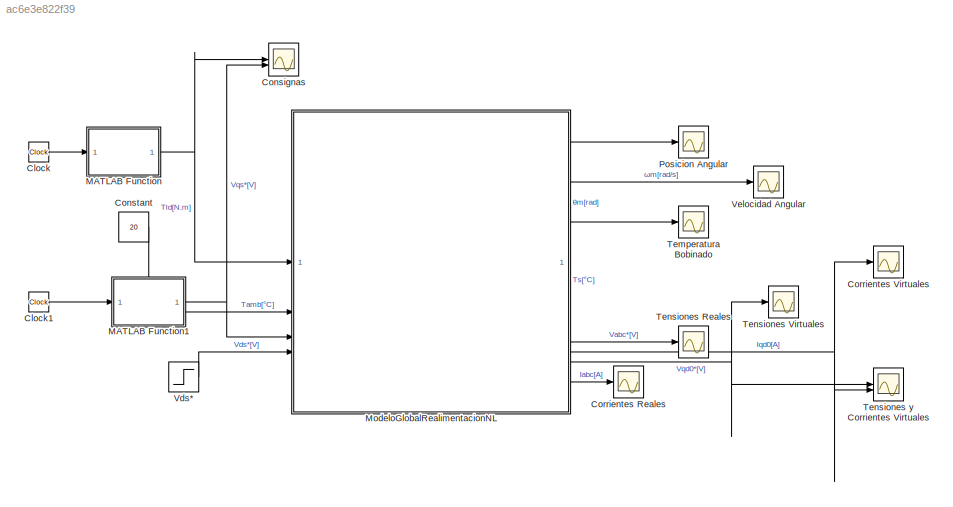
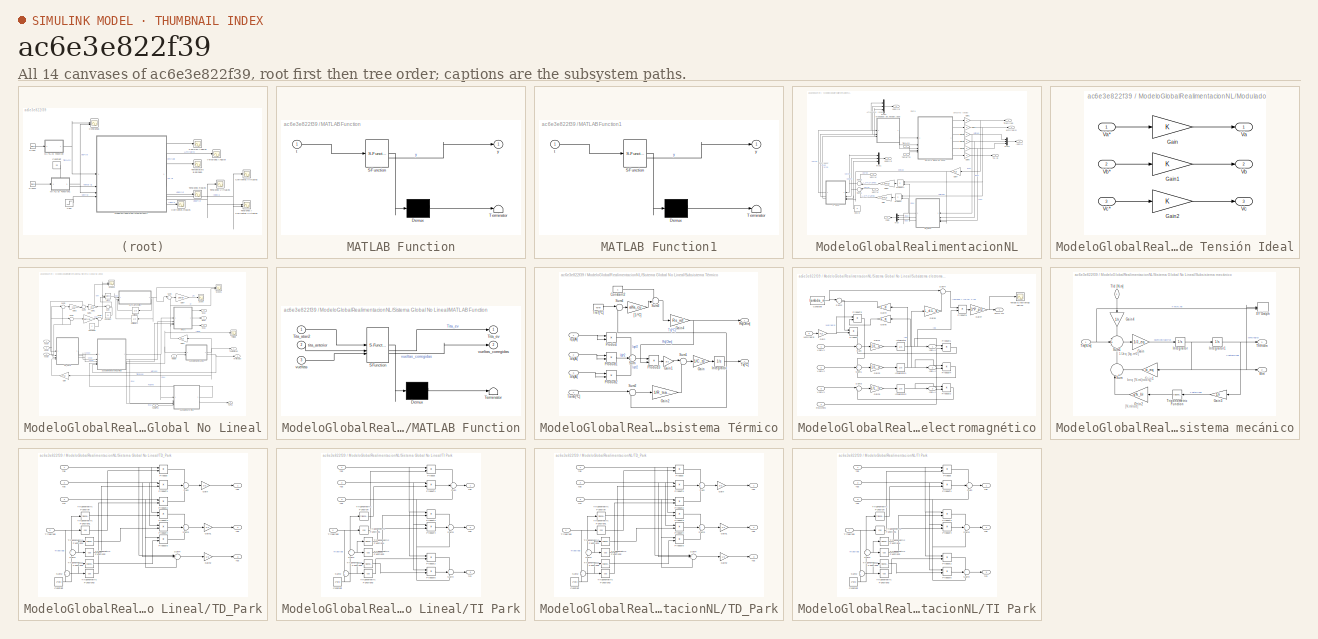
[diagram: thumbnail index - all 14 canvases of the model, root first then tree order]
MODEL slx_ac6e3e822f39
KIND model
CONFIG AbsTol = auto
CONFIG EnableMultiTasking = off
CONFIG FixedStep = auto
CONFIG MaxStep = 0.001
CONFIG MinStep = auto
CONFIG RelTol = 1e-3
CONFIG SampleTimeConstraint = Unconstrained
CONFIG SolverName = VariableStepAuto
CONFIG StartTime = 0.0
CONFIG StopTime = 1
BLOCK [Clock] Clock
BLOCK [Clock] Clock1
BLOCK [Scope] Consignas
  Floating = off
  NumInputPorts = 2
  ScopeSpecificationString = Simulink.scopes.TimeScopeBlockCfg('CurrentConfiguration', extmgr.ConfigurationSet(extmgr.Configuration('Core','General UI',true),extmgr.Configuration('Core','Source UI',true),extmgr.Configuration('Sources','WiredSimulink',true,'DataLoggingVariableName','ScopeData9'),extmgr.Configuration('Visuals','Time Domain',true,'SerializedDisplays',{struct('MinYLimReal','-9.5145','MaxYLimReal','22.8305','YLabe...<+1406ch>
BLOCK [Constant] Constant
  Value = 20
BLOCK [Scope] Corrientes Reales
  Floating = off
  NumInputPorts = 1
  ScopeSpecificationString = Simulink.scopes.TimeScopeBlockCfg('CurrentConfiguration', extmgr.ConfigurationSet(extmgr.Configuration('Core','General UI',true),extmgr.Configuration('Core','Source UI',true),extmgr.Configuration('Sources','WiredSimulink',true,'DataLoggingVariableName','ScopeData4'),extmgr.Configuration('Visuals','Time Domain',true,'SerializedDisplays',{struct('MinYLimReal','-13.91723','MaxYLimReal','13.96706','YL...<+1933ch>
BLOCK [Scope] Corrientes Virtuales
  Floating = off
  NumInputPorts = 1
  ScopeSpecificationString = Simulink.scopes.TimeScopeBlockCfg('CurrentConfiguration', extmgr.ConfigurationSet(extmgr.Configuration('Core','General UI',true),extmgr.Configuration('Core','Source UI',true),extmgr.Configuration('Sources','WiredSimulink',true,'DataLoggingVariableName','ScopeData5'),extmgr.Configuration('Visuals','Time Domain',true,'SerializedDisplays',{struct('MinYLimReal','-14.00748','MaxYLimReal','13.72937','YL...<+1589ch>
BLOCK [SubSystem] MATLAB Function
  ErrorFcn = Stateflow.Translate.translate
  PermitHierarchicalResolution = ExplicitOnly
  SFBlockType = MATLAB Function
  TreatAsAtomicUnit = on
BLOCK [Demux] MATLAB Function/ Demux 
  Outputs = 1
BLOCK [S-Function] MATLAB Function/ SFunction 
  EnableBusSupport = on
  FunctionName = sf_sfun
  PortCounts = [1 2]
  SFcnIsStateOwnerBlock = off
  SFunctionDeploymentMode = off
  Tag = Stateflow S-Function 2
BLOCK [Terminator] MATLAB Function/ Terminator 
BLOCK [Inport] MATLAB Function/t
BLOCK [Outport] MATLAB Function/y
BLOCK [SubSystem] MATLAB Function1
  ErrorFcn = Stateflow.Translate.translate
  PermitHierarchicalResolution = ExplicitOnly
  SFBlockType = MATLAB Function
  TreatAsAtomicUnit = on
BLOCK [Demux] MATLAB Function1/ Demux 
  Outputs = 1
BLOCK [S-Function] MATLAB Function1/ SFunction 
  EnableBusSupport = on
  FunctionName = sf_sfun
  PortCounts = [1 2]
  SFcnIsStateOwnerBlock = off
  SFunctionDeploymentMode = off
  Tag = Stateflow S-Function 1
BLOCK [Terminator] MATLAB Function1/ Terminator 
BLOCK [Inport] MATLAB Function1/t
BLOCK [Outport] MATLAB Function1/y
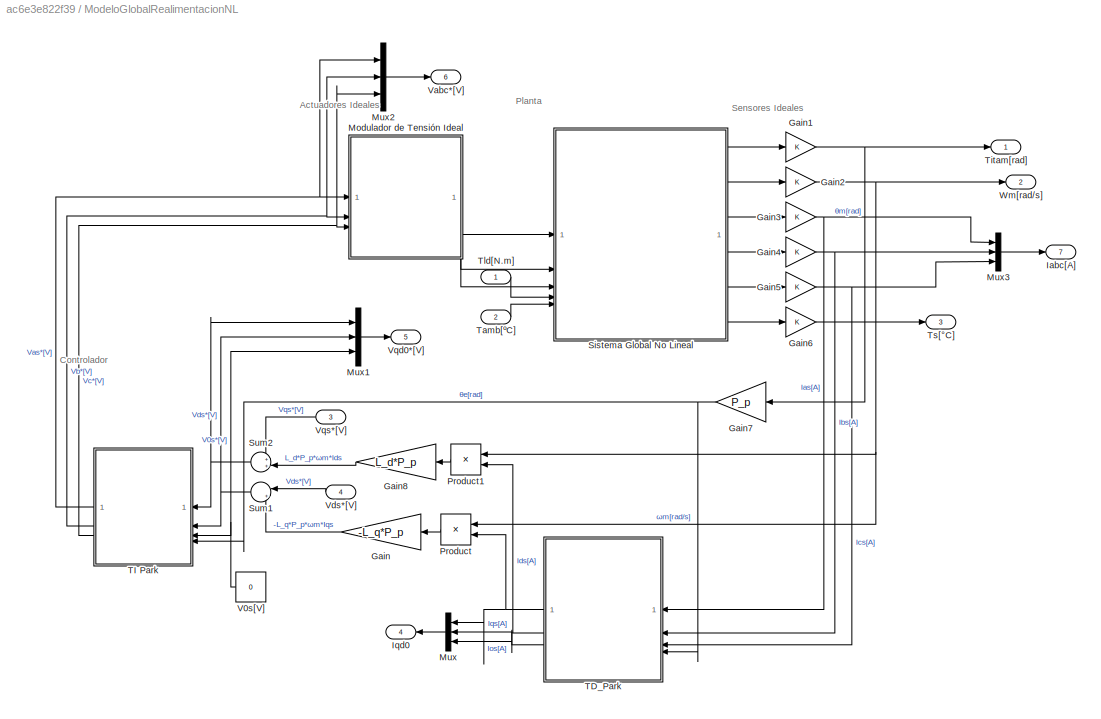
BLOCK [SubSystem] ModeloGlobalRealimentacionNL
BLOCK [Gain] ModeloGlobalRealimentacionNL/Gain
  Gain = -L_q*P_p
BLOCK [Gain] ModeloGlobalRealimentacionNL/Gain1
BLOCK [Gain] ModeloGlobalRealimentacionNL/Gain2
BLOCK [Gain] ModeloGlobalRealimentacionNL/Gain3
BLOCK [Gain] ModeloGlobalRealimentacionNL/Gain4
BLOCK [Gain] ModeloGlobalRealimentacionNL/Gain5
BLOCK [Gain] ModeloGlobalRealimentacionNL/Gain6
BLOCK [Gain] ModeloGlobalRealimentacionNL/Gain7
  Gain = P_p
BLOCK [Gain] ModeloGlobalRealimentacionNL/Gain8
  Gain = L_d*P_p
BLOCK [Outport] ModeloGlobalRealimentacionNL/Iabc[A]
  Port = 7
BLOCK [Outport] ModeloGlobalRealimentacionNL/Iqd0
  Port = 4
BLOCK [SubSystem] ModeloGlobalRealimentacionNL/Modulador de Tensión Ideal
BLOCK [Gain] ModeloGlobalRealimentacionNL/Modulador de Tensión Ideal/Gain
BLOCK [Gain] ModeloGlobalRealimentacionNL/Modulador de Tensión Ideal/Gain1
BLOCK [Gain] ModeloGlobalRealimentacionNL/Modulador de Tensión Ideal/Gain2
BLOCK [Outport] ModeloGlobalRealimentacionNL/Modulador de Tensión Ideal/Va
BLOCK [Inport] ModeloGlobalRealimentacionNL/Modulador de Tensión Ideal/Va*
BLOCK [Outport] ModeloGlobalRealimentacionNL/Modulador de Tensión Ideal/Vb
  Port = 2
BLOCK [Inport] ModeloGlobalRealimentacionNL/Modulador de Tensión Ideal/Vb* 
  Port = 2
BLOCK [Outport] ModeloGlobalRealimentacionNL/Modulador de Tensión Ideal/Vc
  Port = 3
BLOCK [Inport] ModeloGlobalRealimentacionNL/Modulador de Tensión Ideal/Vc*
  Port = 3
BLOCK [Mux] ModeloGlobalRealimentacionNL/Mux
  DisplayOption = bar
  Inputs = 3
BLOCK [Mux] ModeloGlobalRealimentacionNL/Mux1
  DisplayOption = bar
  Inputs = 3
BLOCK [Mux] ModeloGlobalRealimentacionNL/Mux2
  DisplayOption = bar
  Inputs = 3
BLOCK [Mux] ModeloGlobalRealimentacionNL/Mux3
  DisplayOption = bar
  Inputs = 3
BLOCK [Product] ModeloGlobalRealimentacionNL/Product
BLOCK [Product] ModeloGlobalRealimentacionNL/Product1
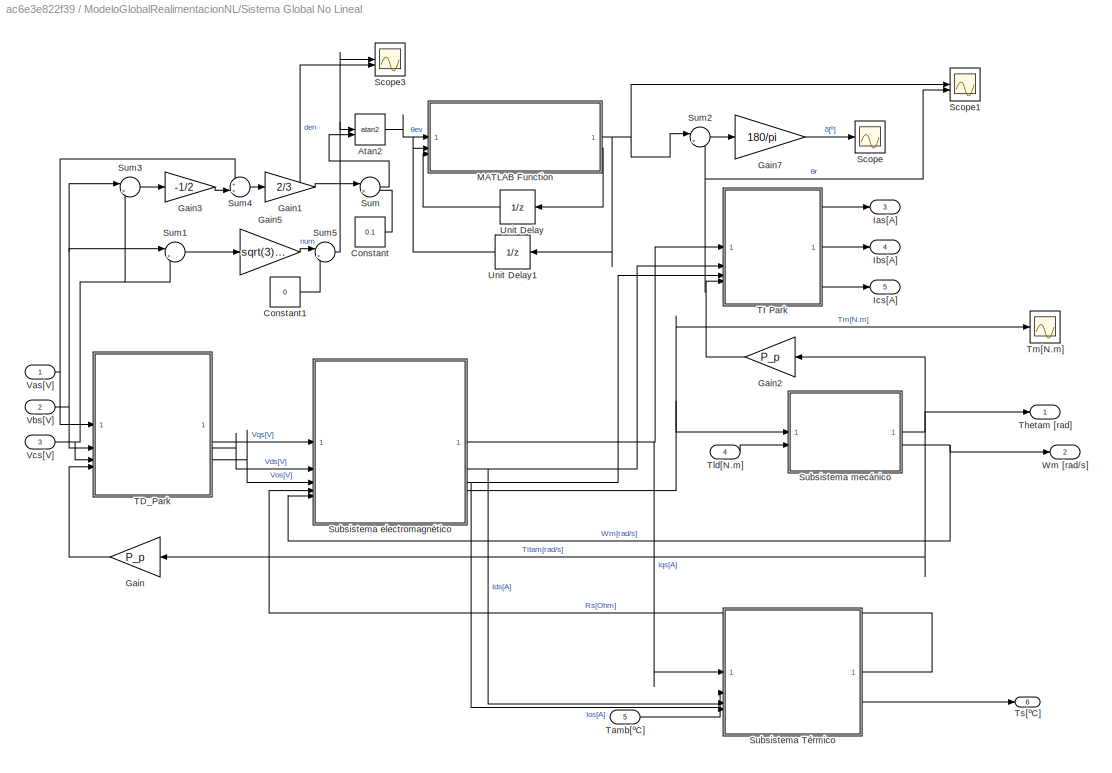
BLOCK [SubSystem] ModeloGlobalRealimentacionNL/Sistema Global No Lineal
BLOCK [Trigonometry] ModeloGlobalRealimentacionNL/Sistema Global No Lineal/Atan2
  Operator = atan2
BLOCK [Constant] ModeloGlobalRealimentacionNL/Sistema Global No Lineal/Constant
  Value = 0.1
BLOCK [Constant] ModeloGlobalRealimentacionNL/Sistema Global No Lineal/Constant1
  Value = 0
BLOCK [Gain] ModeloGlobalRealimentacionNL/Sistema Global No Lineal/Gain
  Gain = P_p
BLOCK [Gain] ModeloGlobalRealimentacionNL/Sistema Global No Lineal/Gain1
  Gain = 2/3
BLOCK [Gain] ModeloGlobalRealimentacionNL/Sistema Global No Lineal/Gain2
  Gain = P_p
BLOCK [Gain] ModeloGlobalRealimentacionNL/Sistema Global No Lineal/Gain3
  Gain = -1/2
BLOCK [Gain] ModeloGlobalRealimentacionNL/Sistema Global No Lineal/Gain5
  Gain = sqrt(3)/3
BLOCK [Gain] ModeloGlobalRealimentacionNL/Sistema Global No Lineal/Gain7
  Gain = 180/pi
BLOCK [Outport] ModeloGlobalRealimentacionNL/Sistema Global No Lineal/Ias[A]
  Port = 3
BLOCK [Outport] ModeloGlobalRealimentacionNL/Sistema Global No Lineal/Ibs[A]
  Port = 4
BLOCK [Outport] ModeloGlobalRealimentacionNL/Sistema Global No Lineal/Ics[A]
  Port = 5
BLOCK [SubSystem] ModeloGlobalRealimentacionNL/Sistema Global No Lineal/MATLAB Function
  ErrorFcn = Stateflow.Translate.translate
  PermitHierarchicalResolution = ExplicitOnly
  SFBlockType = MATLAB Function
  TreatAsAtomicUnit = on
BLOCK [Demux] ModeloGlobalRealimentacionNL/Sistema Global No Lineal/MATLAB Function/ Demux 
  Outputs = 1
BLOCK [S-Function] ModeloGlobalRealimentacionNL/Sistema Global No Lineal/MATLAB Function/ SFunction 
  EnableBusSupport = on
  FunctionName = sf_sfun
  PortCounts = [3 3]
  SFcnIsStateOwnerBlock = off
  SFunctionDeploymentMode = off
  Tag = Stateflow S-Function 3
BLOCK [Terminator] ModeloGlobalRealimentacionNL/Sistema Global No Lineal/MATLAB Function/ Terminator 
BLOCK [Inport] ModeloGlobalRealimentacionNL/Sistema Global No Lineal/MATLAB Function/Tita_atan2
BLOCK [Outport] ModeloGlobalRealimentacionNL/Sistema Global No Lineal/MATLAB Function/Tita_ev
BLOCK [Inport] ModeloGlobalRealimentacionNL/Sistema Global No Lineal/MATLAB Function/tita_anterior
  Port = 2
BLOCK [Inport] ModeloGlobalRealimentacionNL/Sistema Global No Lineal/MATLAB Function/vueltas
  Port = 3
BLOCK [Outport] ModeloGlobalRealimentacionNL/Sistema Global No Lineal/MATLAB Function/vueltas_corregidas
  Port = 2
BLOCK [Scope] ModeloGlobalRealimentacionNL/Sistema Global No Lineal/Scope
  Floating = off
  NumInputPorts = 1
  ScopeSpecificationString = Simulink.scopes.TimeScopeBlockCfg('CurrentConfiguration', extmgr.ConfigurationSet(extmgr.Configuration('Core','General UI',true),extmgr.Configuration('Core','Source UI',true),extmgr.Configuration('Sources','WiredSimulink',true,'DataLoggingVariableName','ScopeData1'),extmgr.Configuration('Visuals','Time Domain',true,'SerializedDisplays',{struct('MinYLimReal','-403.57463','MaxYLimReal','121.46868','...<+1475ch>
BLOCK [Scope] ModeloGlobalRealimentacionNL/Sistema Global No Lineal/Scope1
  Floating = off
  NumInputPorts = 2
  ScopeSpecificationString = Simulink.scopes.TimeScopeBlockCfg('CurrentConfiguration', extmgr.ConfigurationSet(extmgr.Configuration('Core','General UI',true),extmgr.Configuration('Core','Source UI',true),extmgr.Configuration('Sources','WiredSimulink',true,'DataLoggingVariableName','ScopeData1'),extmgr.Configuration('Visuals','Time Domain',true,'SerializedDisplays',{struct('MinYLimReal','-90.39349','MaxYLimReal','813.54144','Y...<+2055ch>
BLOCK [Scope] ModeloGlobalRealimentacionNL/Sistema Global No Lineal/Scope3
  Floating = off
  NumInputPorts = 2
  ScopeSpecificationString = Simulink.scopes.TimeScopeBlockCfg('CurrentConfiguration', extmgr.ConfigurationSet(extmgr.Configuration('Core','General UI',true),extmgr.Configuration('Core','Source UI',true),extmgr.Configuration('Sources','WiredSimulink',true,'DataLoggingVariableName','ScopeData2'),extmgr.Configuration('Visuals','Time Domain',true,'SerializedDisplays',{struct('MinYLimReal','-24.67394','MaxYLimReal','24.67454','YL...<+2422ch>
BLOCK [SubSystem] ModeloGlobalRealimentacionNL/Sistema Global No Lineal/Subsistema Térmico
BLOCK [Constant] ModeloGlobalRealimentacionNL/Sistema Global No Lineal/Subsistema Térmico/Constant2
BLOCK [Gain] ModeloGlobalRealimentacionNL/Sistema Global No Lineal/Subsistema Térmico/Gain
  Gain = 1/C_ts
BLOCK [Gain] ModeloGlobalRealimentacionNL/Sistema Global No Lineal/Subsistema Térmico/Gain1
  Gain = 3/2
BLOCK [Gain] ModeloGlobalRealimentacionNL/Sistema Global No Lineal/Subsistema Térmico/Gain2
  Gain = 1/R_tsamb
BLOCK [Gain] ModeloGlobalRealimentacionNL/Sistema Global No Lineal/Subsistema Térmico/Gain4
  Gain = Rs_ref
BLOCK [Inport] ModeloGlobalRealimentacionNL/Sistema Global No Lineal/Subsistema Térmico/Ids[A]
  Port = 2
BLOCK [Integrator] ModeloGlobalRealimentacionNL/Sistema Global No Lineal/Subsistema Térmico/Integrator
  InitialCondition = Ts_0
BLOCK [Inport] ModeloGlobalRealimentacionNL/Sistema Global No Lineal/Subsistema Térmico/Ios[A]
  Port = 3
BLOCK [Inport] ModeloGlobalRealimentacionNL/Sistema Global No Lineal/Subsistema Térmico/Iqs[A]
BLOCK [Product] ModeloGlobalRealimentacionNL/Sistema Global No Lineal/Subsistema Térmico/Product
BLOCK [Product] ModeloGlobalRealimentacionNL/Sistema Global No Lineal/Subsistema Térmico/Product1
BLOCK [Product] ModeloGlobalRealimentacionNL/Sistema Global No Lineal/Subsistema Térmico/Product2
BLOCK [Product] ModeloGlobalRealimentacionNL/Sistema Global No Lineal/Subsistema Térmico/Product3
BLOCK [Outport] ModeloGlobalRealimentacionNL/Sistema Global No Lineal/Subsistema Térmico/Rs[Ohm]
BLOCK [Sum] ModeloGlobalRealimentacionNL/Sistema Global No Lineal/Subsistema Térmico/Sum
  Inputs = +++
BLOCK [Sum] ModeloGlobalRealimentacionNL/Sistema Global No Lineal/Subsistema Térmico/Sum1
  Inputs = |+-
BLOCK [Sum] ModeloGlobalRealimentacionNL/Sistema Global No Lineal/Subsistema Térmico/Sum2
  Inputs = |-+
BLOCK [Sum] ModeloGlobalRealimentacionNL/Sistema Global No Lineal/Subsistema Térmico/Sum3
  Inputs = ++|
BLOCK [Sum] ModeloGlobalRealimentacionNL/Sistema Global No Lineal/Subsistema Térmico/Sum4
  Inputs = |-+
BLOCK [Inport] ModeloGlobalRealimentacionNL/Sistema Global No Lineal/Subsistema Térmico/Tamb[ºC]
  Port = 4
BLOCK [Constant] ModeloGlobalRealimentacionNL/Sistema Global No Lineal/Subsistema Térmico/Tref[ºC]
  Value = Tsref
BLOCK [Outport] ModeloGlobalRealimentacionNL/Sistema Global No Lineal/Subsistema Térmico/Ts[ºC]
  Port = 2
BLOCK [Gain] ModeloGlobalRealimentacionNL/Sistema Global No Lineal/Subsistema Térmico/[1//ºC]
  Gain = alfa_cu
BLOCK [SubSystem] ModeloGlobalRealimentacionNL/Sistema Global No Lineal/Subsistema electromagnético
BLOCK [Constant] ModeloGlobalRealimentacionNL/Sistema Global No Lineal/Subsistema electromagnético/Constant
  Value = lambda_m
BLOCK [Gain] ModeloGlobalRealimentacionNL/Sistema Global No Lineal/Subsistema electromagnético/Gain
  Gain = P_p
BLOCK [Gain] ModeloGlobalRealimentacionNL/Sistema Global No Lineal/Subsistema electromagnético/Gain1
  Gain = 1/L_q
BLOCK [Gain] ModeloGlobalRealimentacionNL/Sistema Global No Lineal/Subsistema electromagnético/Gain2
  Gain = 1/L_d
BLOCK [Gain] ModeloGlobalRealimentacionNL/Sistema Global No Lineal/Subsistema electromagnético/Gain3
  Gain = 1/L_ls
BLOCK [Gain] ModeloGlobalRealimentacionNL/Sistema Global No Lineal/Subsistema electromagnético/Gain4
  Gain = L_d
BLOCK [Gain] ModeloGlobalRealimentacionNL/Sistema Global No Lineal/Subsistema electromagnético/Gain5
  Gain = L_q
BLOCK [Gain] ModeloGlobalRealimentacionNL/Sistema Global No Lineal/Subsistema electromagnético/Gain6
  Gain = L_d-L_q
BLOCK [Gain] ModeloGlobalRealimentacionNL/Sistema Global No Lineal/Subsistema electromagnético/Gain7
  Gain = 3*P_p/2
BLOCK [Outport] ModeloGlobalRealimentacionNL/Sistema Global No Lineal/Subsistema electromagnético/Ids[A]
  Port = 2
BLOCK [Integrator] ModeloGlobalRealimentacionNL/Sistema Global No Lineal/Subsistema electromagnético/Integrator
BLOCK [Integrator] ModeloGlobalRealimentacionNL/Sistema Global No Lineal/Subsistema electromagnético/Integrator1
  InitialCondition = -0.5
BLOCK [Integrator] ModeloGlobalRealimentacionNL/Sistema Global No Lineal/Subsistema electromagnético/Integrator2
BLOCK [Outport] ModeloGlobalRealimentacionNL/Sistema Global No Lineal/Subsistema electromagnético/Ios[A]
  Port = 3
BLOCK [Outport] ModeloGlobalRealimentacionNL/Sistema Global No Lineal/Subsistema electromagnético/Iqs[A]
BLOCK [Product] ModeloGlobalRealimentacionNL/Sistema Global No Lineal/Subsistema electromagnético/Product
BLOCK [Product] ModeloGlobalRealimentacionNL/Sistema Global No Lineal/Subsistema electromagnético/Product1
BLOCK [Product] ModeloGlobalRealimentacionNL/Sistema Global No Lineal/Subsistema electromagnético/Product2
BLOCK [Product] ModeloGlobalRealimentacionNL/Sistema Global No Lineal/Subsistema electromagnético/Product3
BLOCK [Product] ModeloGlobalRealimentacionNL/Sistema Global No Lineal/Subsistema electromagnético/Product4
BLOCK [Product] ModeloGlobalRealimentacionNL/Sistema Global No Lineal/Subsistema electromagnético/Product5
BLOCK [Inport] ModeloGlobalRealimentacionNL/Sistema Global No Lineal/Subsistema electromagnético/Rs[Ohm]
  Port = 4
BLOCK [Sum] ModeloGlobalRealimentacionNL/Sistema Global No Lineal/Subsistema electromagnético/Sum
  Inputs = -+-
BLOCK [Sum] ModeloGlobalRealimentacionNL/Sistema Global No Lineal/Subsistema electromagnético/Sum1
  Inputs = ++-
BLOCK [Sum] ModeloGlobalRealimentacionNL/Sistema Global No Lineal/Subsistema electromagnético/Sum2
  Inputs = |++
BLOCK [Sum] ModeloGlobalRealimentacionNL/Sistema Global No Lineal/Subsistema electromagnético/Sum3
  Inputs = |+-
BLOCK [Sum] ModeloGlobalRealimentacionNL/Sistema Global No Lineal/Subsistema electromagnético/Sum4
  Inputs = |++
BLOCK [Outport] ModeloGlobalRealimentacionNL/Sistema Global No Lineal/Subsistema electromagnético/Tm[N.m]
  Port = 4
BLOCK [Scope] ModeloGlobalRealimentacionNL/Sistema Global No Lineal/Subsistema electromagnético/Torque Electromagnético
  Floating = off
  NumInputPorts = 1
  ScopeSpecificationString = Simulink.scopes.TimeScopeBlockCfg('CurrentConfiguration', extmgr.ConfigurationSet(extmgr.Configuration('Core','General UI',true),extmgr.Configuration('Core','Source UI',true),extmgr.Configuration('Sources','WiredSimulink',true,'DataLoggingVariableName','Tm','DataLogging',true,'DataLoggingSaveFormat','Array'),extmgr.Configuration('Visuals','Time Domain',true,'SerializedDisplays',{struct('MinYLimRea...<+1405ch>
BLOCK [Inport] ModeloGlobalRealimentacionNL/Sistema Global No Lineal/Subsistema electromagnético/Vds[V]
  Port = 2
BLOCK [Inport] ModeloGlobalRealimentacionNL/Sistema Global No Lineal/Subsistema electromagnético/Vos[V]
  Port = 3
BLOCK [Inport] ModeloGlobalRealimentacionNL/Sistema Global No Lineal/Subsistema electromagnético/Vqs[V]
BLOCK [Inport] ModeloGlobalRealimentacionNL/Sistema Global No Lineal/Subsistema electromagnético/Wm[rad//s]
  Port = 5
BLOCK [SubSystem] ModeloGlobalRealimentacionNL/Sistema Global No Lineal/Subsistema mecánico
BLOCK [Gain] ModeloGlobalRealimentacionNL/Sistema Global No Lineal/Subsistema mecánico/Gain
  Gain = 1/J_eq
BLOCK [Gain] ModeloGlobalRealimentacionNL/Sistema Global No Lineal/Subsistema mecánico/Gain1
  Gain = b_eq
BLOCK [Gain] ModeloGlobalRealimentacionNL/Sistema Global No Lineal/Subsistema mecánico/Gain2
  Gain = g*k_l/r
BLOCK [Gain] ModeloGlobalRealimentacionNL/Sistema Global No Lineal/Subsistema mecánico/Gain3
  Gain = 1/r
BLOCK [Gain] ModeloGlobalRealimentacionNL/Sistema Global No Lineal/Subsistema mecánico/Gain4
  Gain = 1/r
  NameLocation = left
BLOCK [Integrator] ModeloGlobalRealimentacionNL/Sistema Global No Lineal/Subsistema mecánico/Integrator
BLOCK [Integrator] ModeloGlobalRealimentacionNL/Sistema Global No Lineal/Subsistema mecánico/Integrator1
BLOCK [Sum] ModeloGlobalRealimentacionNL/Sistema Global No Lineal/Subsistema mecánico/Sum
  Inputs = |++
  NameLocation = left
BLOCK [Sum] ModeloGlobalRealimentacionNL/Sistema Global No Lineal/Subsistema mecánico/Sum1
  Inputs = -+-
BLOCK [Outport] ModeloGlobalRealimentacionNL/Sistema Global No Lineal/Subsistema mecánico/Thetam
BLOCK [Inport] ModeloGlobalRealimentacionNL/Sistema Global No Lineal/Subsistema mecánico/Tld [N.m]
  NameLocation = left
  Port = 2
BLOCK [Inport] ModeloGlobalRealimentacionNL/Sistema Global No Lineal/Subsistema mecánico/Tm[N.m]
BLOCK [Trigonometry] ModeloGlobalRealimentacionNL/Sistema Global No Lineal/Subsistema mecánico/Trigonometric Function
BLOCK [Outport] ModeloGlobalRealimentacionNL/Sistema Global No Lineal/Subsistema mecánico/Wm
  Port = 2
BLOCK [Record] ModeloGlobalRealimentacionNL/Sistema Global No Lineal/Subsistema mecánico/XY Graph
  CompatibilityTag = XY
  FileSettingsInternal = {"entries":[{"content":{"excelSettings":{"content":{},"type":"Streamout.ExcelSettings"}},"type":"Streamout.FileSettingStorage","uuid":""}],"packageUris":["http:\/\/schema.mathworks.com\/mf0\/streamout_blocks\/R2020a"],"version":"1.0"}
  Layout = [1 1]
  SignalsInternal = {"entries":[{"content":{"signals":[{"content":{"blockPath":[],"dimensions":[1],"domain":"","lineColor":"#a2142f","plots":[1],"port":1,"sid":[""],"signalID":10775,"signalName":"Wm[rad\/s]"},"type":"RecordBlkView.Signal","uuid":""},{"content":{"blockPath":[],"dimensions":[1],"domain":"","lineColor":"#139fff","plots":[1],"port":2,"sid":[""],"signalID":10779,"signalName":"Tm[N.m]"},"type":"RecordBlkVi...<+167ch>
  VisualizationBindings = {"xyplotplugin":{"info":[{"series":[{"bindingParametersList":[{"parameter":"X-Axis","signalID":10775,"signalName":"Wm[rad\/s]"},{"parameter":"Y-Axis","signalID":10779,"signalName":"Tm[N.m]"}],"seriesID":59530}],"subplotID":1}]}}
BLOCK [Sum] ModeloGlobalRealimentacionNL/Sistema Global No Lineal/Sum
  Inputs = |++
BLOCK [Sum] ModeloGlobalRealimentacionNL/Sistema Global No Lineal/Sum1
  Inputs = |+-
BLOCK [Sum] ModeloGlobalRealimentacionNL/Sistema Global No Lineal/Sum2
  Inputs = |+-
BLOCK [Sum] ModeloGlobalRealimentacionNL/Sistema Global No Lineal/Sum3
  Inputs = |++
BLOCK [Sum] ModeloGlobalRealimentacionNL/Sistema Global No Lineal/Sum4
  Inputs = ++|
BLOCK [Sum] ModeloGlobalRealimentacionNL/Sistema Global No Lineal/Sum5
  Inputs = |++
BLOCK [SubSystem] ModeloGlobalRealimentacionNL/Sistema Global No Lineal/TD_Park
BLOCK [Constant] ModeloGlobalRealimentacionNL/Sistema Global No Lineal/TD_Park/Constant
  Value = 2*pi/3
BLOCK [Gain] ModeloGlobalRealimentacionNL/Sistema Global No Lineal/TD_Park/Gain
  Gain = 2/3
BLOCK [Gain] ModeloGlobalRealimentacionNL/Sistema Global No Lineal/TD_Park/Gain1
  Gain = 2/3
BLOCK [Gain] ModeloGlobalRealimentacionNL/Sistema Global No Lineal/TD_Park/Gain2
  Gain = 1/3
BLOCK [Product] ModeloGlobalRealimentacionNL/Sistema Global No Lineal/TD_Park/Product
BLOCK [Product] ModeloGlobalRealimentacionNL/Sistema Global No Lineal/TD_Park/Product1
BLOCK [Product] ModeloGlobalRealimentacionNL/Sistema Global No Lineal/TD_Park/Product2
BLOCK [Product] ModeloGlobalRealimentacionNL/Sistema Global No Lineal/TD_Park/Product3
BLOCK [Product] ModeloGlobalRealimentacionNL/Sistema Global No Lineal/TD_Park/Product4
BLOCK [Product] ModeloGlobalRealimentacionNL/Sistema Global No Lineal/TD_Park/Product5
BLOCK [Sum] ModeloGlobalRealimentacionNL/Sistema Global No Lineal/TD_Park/Sum
  Inputs = +++
BLOCK [Sum] ModeloGlobalRealimentacionNL/Sistema Global No Lineal/TD_Park/Sum1
  Inputs = +-
BLOCK [Sum] ModeloGlobalRealimentacionNL/Sistema Global No Lineal/TD_Park/Sum2
BLOCK [Sum] ModeloGlobalRealimentacionNL/Sistema Global No Lineal/TD_Park/Sum3
  Inputs = +++
BLOCK [Sum] ModeloGlobalRealimentacionNL/Sistema Global No Lineal/TD_Park/Sum4
  Inputs = +++
BLOCK [Inport] ModeloGlobalRealimentacionNL/Sistema Global No Lineal/TD_Park/Titae[rad]
  Port = 4
BLOCK [Trigonometry] ModeloGlobalRealimentacionNL/Sistema Global No Lineal/TD_Park/Trigonometric Function
BLOCK [Trigonometry] ModeloGlobalRealimentacionNL/Sistema Global No Lineal/TD_Park/Trigonometric Function1
  Operator = cos
BLOCK [Trigonometry] ModeloGlobalRealimentacionNL/Sistema Global No Lineal/TD_Park/Trigonometric Function2
  Operator = cos
BLOCK [Trigonometry] ModeloGlobalRealimentacionNL/Sistema Global No Lineal/TD_Park/Trigonometric Function3
  Operator = cos
BLOCK [Trigonometry] ModeloGlobalRealimentacionNL/Sistema Global No Lineal/TD_Park/Trigonometric Function4
BLOCK [Trigonometry] ModeloGlobalRealimentacionNL/Sistema Global No Lineal/TD_Park/Trigonometric Function5
BLOCK [Outport] ModeloGlobalRealimentacionNL/Sistema Global No Lineal/TD_Park/f0s
  Port = 3
BLOCK [Inport] ModeloGlobalRealimentacionNL/Sistema Global No Lineal/TD_Park/fas
BLOCK [Inport] ModeloGlobalRealimentacionNL/Sistema Global No Lineal/TD_Park/fbs
  Port = 2
BLOCK [Inport] ModeloGlobalRealimentacionNL/Sistema Global No Lineal/TD_Park/fcs
  Port = 3
BLOCK [Outport] ModeloGlobalRealimentacionNL/Sistema Global No Lineal/TD_Park/fds
  Port = 2
BLOCK [Outport] ModeloGlobalRealimentacionNL/Sistema Global No Lineal/TD_Park/fqs
BLOCK [SubSystem] ModeloGlobalRealimentacionNL/Sistema Global No Lineal/TI Park
BLOCK [Constant] ModeloGlobalRealimentacionNL/Sistema Global No Lineal/TI Park/Constant
  Value = 2*pi/3
BLOCK [Product] ModeloGlobalRealimentacionNL/Sistema Global No Lineal/TI Park/Product
BLOCK [Product] ModeloGlobalRealimentacionNL/Sistema Global No Lineal/TI Park/Product1
BLOCK [Product] ModeloGlobalRealimentacionNL/Sistema Global No Lineal/TI Park/Product2
BLOCK [Product] ModeloGlobalRealimentacionNL/Sistema Global No Lineal/TI Park/Product3
BLOCK [Product] ModeloGlobalRealimentacionNL/Sistema Global No Lineal/TI Park/Product4
BLOCK [Product] ModeloGlobalRealimentacionNL/Sistema Global No Lineal/TI Park/Product5
BLOCK [Sum] ModeloGlobalRealimentacionNL/Sistema Global No Lineal/TI Park/Sum
  Inputs = +++
BLOCK [Sum] ModeloGlobalRealimentacionNL/Sistema Global No Lineal/TI Park/Sum1
  Inputs = +-
BLOCK [Sum] ModeloGlobalRealimentacionNL/Sistema Global No Lineal/TI Park/Sum2
BLOCK [Sum] ModeloGlobalRealimentacionNL/Sistema Global No Lineal/TI Park/Sum3
  Inputs = +++
BLOCK [Sum] ModeloGlobalRealimentacionNL/Sistema Global No Lineal/TI Park/Sum4
  Inputs = +++
BLOCK [Inport] ModeloGlobalRealimentacionNL/Sistema Global No Lineal/TI Park/Titae[rad]
  Port = 4
BLOCK [Trigonometry] ModeloGlobalRealimentacionNL/Sistema Global No Lineal/TI Park/Trigonometric Function
BLOCK [Trigonometry] ModeloGlobalRealimentacionNL/Sistema Global No Lineal/TI Park/Trigonometric Function1
  Operator = cos
BLOCK [Trigonometry] ModeloGlobalRealimentacionNL/Sistema Global No Lineal/TI Park/Trigonometric Function2
  Operator = cos
BLOCK [Trigonometry] ModeloGlobalRealimentacionNL/Sistema Global No Lineal/TI Park/Trigonometric Function3
  Operator = cos
BLOCK [Trigonometry] ModeloGlobalRealimentacionNL/Sistema Global No Lineal/TI Park/Trigonometric Function4
BLOCK [Trigonometry] ModeloGlobalRealimentacionNL/Sistema Global No Lineal/TI Park/Trigonometric Function5
BLOCK [Inport] ModeloGlobalRealimentacionNL/Sistema Global No Lineal/TI Park/f0s
  Port = 3
BLOCK [Outport] ModeloGlobalRealimentacionNL/Sistema Global No Lineal/TI Park/fas
BLOCK [Outport] ModeloGlobalRealimentacionNL/Sistema Global No Lineal/TI Park/fbs
  Port = 2
BLOCK [Outport] ModeloGlobalRealimentacionNL/Sistema Global No Lineal/TI Park/fcs
  Port = 3
BLOCK [Inport] ModeloGlobalRealimentacionNL/Sistema Global No Lineal/TI Park/fds
  Port = 2
BLOCK [Inport] ModeloGlobalRealimentacionNL/Sistema Global No Lineal/TI Park/fqs
BLOCK [Inport] ModeloGlobalRealimentacionNL/Sistema Global No Lineal/Tamb[ºC]
  Port = 5
BLOCK [Outport] ModeloGlobalRealimentacionNL/Sistema Global No Lineal/Thetam [rad]
BLOCK [Inport] ModeloGlobalRealimentacionNL/Sistema Global No Lineal/Tld[N.m]
  Port = 4
BLOCK [Scope] ModeloGlobalRealimentacionNL/Sistema Global No Lineal/Tm[N.m]
  Floating = off
  NumInputPorts = 1
  ScopeSpecificationString = Simulink.scopes.TimeScopeBlockCfg('CurrentConfiguration', extmgr.ConfigurationSet(extmgr.Configuration('Core','General UI',true),extmgr.Configuration('Core','Source UI',true),extmgr.Configuration('Sources','WiredSimulink',true),extmgr.Configuration('Visuals','Time Domain',true,'SerializedDisplays',{struct('MinYLimReal','-1.0134','MaxYLimReal','0.98908','YLabelReal','','MinYLimMag','0.00000','MaxYL...<+1352ch>
BLOCK [Outport] ModeloGlobalRealimentacionNL/Sistema Global No Lineal/Ts[ºC]
  Port = 6
BLOCK [UnitDelay] ModeloGlobalRealimentacionNL/Sistema Global No Lineal/Unit Delay
  HasFrameUpgradeWarning = on
  NameLocation = top
  SampleTime = -1
BLOCK [UnitDelay] ModeloGlobalRealimentacionNL/Sistema Global No Lineal/Unit Delay1
  HasFrameUpgradeWarning = on
  NameLocation = top
  SampleTime = -1
BLOCK [Inport] ModeloGlobalRealimentacionNL/Sistema Global No Lineal/Vas[V]
BLOCK [Inport] ModeloGlobalRealimentacionNL/Sistema Global No Lineal/Vbs[V]
  Port = 2
BLOCK [Inport] ModeloGlobalRealimentacionNL/Sistema Global No Lineal/Vcs[V]
  Port = 3
BLOCK [Outport] ModeloGlobalRealimentacionNL/Sistema Global No Lineal/Wm [rad//s]
  Port = 2
BLOCK [Sum] ModeloGlobalRealimentacionNL/Sum1
  Inputs = |++
BLOCK [Sum] ModeloGlobalRealimentacionNL/Sum2
  Inputs = ++|
BLOCK [SubSystem] ModeloGlobalRealimentacionNL/TD_Park
BLOCK [Constant] ModeloGlobalRealimentacionNL/TD_Park/Constant
  Value = 2*pi/3
BLOCK [Gain] ModeloGlobalRealimentacionNL/TD_Park/Gain
  Gain = 2/3
BLOCK [Gain] ModeloGlobalRealimentacionNL/TD_Park/Gain1
  Gain = 2/3
BLOCK [Gain] ModeloGlobalRealimentacionNL/TD_Park/Gain2
  Gain = 1/3
BLOCK [Product] ModeloGlobalRealimentacionNL/TD_Park/Product
BLOCK [Product] ModeloGlobalRealimentacionNL/TD_Park/Product1
BLOCK [Product] ModeloGlobalRealimentacionNL/TD_Park/Product2
BLOCK [Product] ModeloGlobalRealimentacionNL/TD_Park/Product3
BLOCK [Product] ModeloGlobalRealimentacionNL/TD_Park/Product4
BLOCK [Product] ModeloGlobalRealimentacionNL/TD_Park/Product5
BLOCK [Sum] ModeloGlobalRealimentacionNL/TD_Park/Sum
  Inputs = +++
BLOCK [Sum] ModeloGlobalRealimentacionNL/TD_Park/Sum1
  Inputs = +-
BLOCK [Sum] ModeloGlobalRealimentacionNL/TD_Park/Sum2
BLOCK [Sum] ModeloGlobalRealimentacionNL/TD_Park/Sum3
  Inputs = +++
BLOCK [Sum] ModeloGlobalRealimentacionNL/TD_Park/Sum4
  Inputs = +++
BLOCK [Inport] ModeloGlobalRealimentacionNL/TD_Park/Titae[rad]
  Port = 4
BLOCK [Trigonometry] ModeloGlobalRealimentacionNL/TD_Park/Trigonometric Function
BLOCK [Trigonometry] ModeloGlobalRealimentacionNL/TD_Park/Trigonometric Function1
  Operator = cos
BLOCK [Trigonometry] ModeloGlobalRealimentacionNL/TD_Park/Trigonometric Function2
  Operator = cos
BLOCK [Trigonometry] ModeloGlobalRealimentacionNL/TD_Park/Trigonometric Function3
  Operator = cos
BLOCK [Trigonometry] ModeloGlobalRealimentacionNL/TD_Park/Trigonometric Function4
BLOCK [Trigonometry] ModeloGlobalRealimentacionNL/TD_Park/Trigonometric Function5
BLOCK [Outport] ModeloGlobalRealimentacionNL/TD_Park/f0s
  Port = 3
BLOCK [Inport] ModeloGlobalRealimentacionNL/TD_Park/fas
BLOCK [Inport] ModeloGlobalRealimentacionNL/TD_Park/fbs
  Port = 2
BLOCK [Inport] ModeloGlobalRealimentacionNL/TD_Park/fcs
  Port = 3
BLOCK [Outport] ModeloGlobalRealimentacionNL/TD_Park/fds
  Port = 2
BLOCK [Outport] ModeloGlobalRealimentacionNL/TD_Park/fqs
BLOCK [SubSystem] ModeloGlobalRealimentacionNL/TI Park
BLOCK [Constant] ModeloGlobalRealimentacionNL/TI Park/Constant
  Value = 2*pi/3
BLOCK [Product] ModeloGlobalRealimentacionNL/TI Park/Product
BLOCK [Product] ModeloGlobalRealimentacionNL/TI Park/Product1
BLOCK [Product] ModeloGlobalRealimentacionNL/TI Park/Product2
BLOCK [Product] ModeloGlobalRealimentacionNL/TI Park/Product3
BLOCK [Product] ModeloGlobalRealimentacionNL/TI Park/Product4
BLOCK [Product] ModeloGlobalRealimentacionNL/TI Park/Product5
BLOCK [Sum] ModeloGlobalRealimentacionNL/TI Park/Sum
  Inputs = +++
BLOCK [Sum] ModeloGlobalRealimentacionNL/TI Park/Sum1
  Inputs = +-
BLOCK [Sum] ModeloGlobalRealimentacionNL/TI Park/Sum2
BLOCK [Sum] ModeloGlobalRealimentacionNL/TI Park/Sum3
  Inputs = +++
BLOCK [Sum] ModeloGlobalRealimentacionNL/TI Park/Sum4
  Inputs = +++
BLOCK [Inport] ModeloGlobalRealimentacionNL/TI Park/Titae[rad]
  Port = 4
BLOCK [Trigonometry] ModeloGlobalRealimentacionNL/TI Park/Trigonometric Function
BLOCK [Trigonometry] ModeloGlobalRealimentacionNL/TI Park/Trigonometric Function1
  Operator = cos
BLOCK [Trigonometry] ModeloGlobalRealimentacionNL/TI Park/Trigonometric Function2
  Operator = cos
BLOCK [Trigonometry] ModeloGlobalRealimentacionNL/TI Park/Trigonometric Function3
  Operator = cos
BLOCK [Trigonometry] ModeloGlobalRealimentacionNL/TI Park/Trigonometric Function4
BLOCK [Trigonometry] ModeloGlobalRealimentacionNL/TI Park/Trigonometric Function5
BLOCK [Inport] ModeloGlobalRealimentacionNL/TI Park/f0s
  Port = 3
BLOCK [Outport] ModeloGlobalRealimentacionNL/TI Park/fas
BLOCK [Outport] ModeloGlobalRealimentacionNL/TI Park/fbs
  Port = 2
BLOCK [Outport] ModeloGlobalRealimentacionNL/TI Park/fcs
  Port = 3
BLOCK [Inport] ModeloGlobalRealimentacionNL/TI Park/fds
  Port = 2
BLOCK [Inport] ModeloGlobalRealimentacionNL/TI Park/fqs
BLOCK [Inport] ModeloGlobalRealimentacionNL/Tamb[ºC]
  Port = 2
BLOCK [Outport] ModeloGlobalRealimentacionNL/Titam[rad]
BLOCK [Inport] ModeloGlobalRealimentacionNL/Tld[N.m]
BLOCK [Outport] ModeloGlobalRealimentacionNL/Ts[°C]
  Port = 3
BLOCK [Constant] ModeloGlobalRealimentacionNL/V0s[V]
  Value = 0
BLOCK [Outport] ModeloGlobalRealimentacionNL/Vabc*[V]
  Port = 6
BLOCK [Inport] ModeloGlobalRealimentacionNL/Vds*[V]
  Port = 4
BLOCK [Outport] ModeloGlobalRealimentacionNL/Vqd0*[V]
  Port = 5
BLOCK [Inport] ModeloGlobalRealimentacionNL/Vqs*[V]
  Port = 3
BLOCK [Outport] ModeloGlobalRealimentacionNL/Wm[rad//s]
  Port = 2
BLOCK [Scope] Posicion Angular
  Floating = off
  NumInputPorts = 1
  ScopeSpecificationString = Simulink.scopes.TimeScopeBlockCfg('CurrentConfiguration', extmgr.ConfigurationSet(extmgr.Configuration('Core','General UI',true),extmgr.Configuration('Core','Source UI',true),extmgr.Configuration('Sources','WiredSimulink',true,'DataLoggingVariableName','ScopeData2'),extmgr.Configuration('Visuals','Time Domain',true,'SerializedDisplays',{struct('MinYLimReal','-30.36019','MaxYLimReal','273.24174','Y...<+1403ch>
BLOCK [Scope] Temperatura Bobinado
  Floating = off
  NumInputPorts = 1
  ScopeSpecificationString = Simulink.scopes.TimeScopeBlockCfg('CurrentConfiguration', extmgr.ConfigurationSet(extmgr.Configuration('Core','General UI',true),extmgr.Configuration('Core','Source UI',true),extmgr.Configuration('Sources','WiredSimulink',true,'DataLoggingVariableName','ScopeData8'),extmgr.Configuration('Visuals','Time Domain',true,'SerializedDisplays',{struct('MinYLimReal','19.38558','MaxYLimReal','25.52975','YLa...<+1402ch>
BLOCK [Scope] Tensiones Reales
  Floating = off
  NumInputPorts = 1
  ScopeSpecificationString = Simulink.scopes.TimeScopeBlockCfg('CurrentConfiguration', extmgr.ConfigurationSet(extmgr.Configuration('Core','General UI',true),extmgr.Configuration('Core','Source UI',true),extmgr.Configuration('Sources','WiredSimulink',true,'DataLoggingVariableName','ScopeData7'),extmgr.Configuration('Visuals','Time Domain',true,'SerializedDisplays',{struct('MinYLimReal','-67.54304','MaxYLimReal','64.74357','YL...<+1586ch>
BLOCK [Scope] Tensiones Virtuales
  Floating = off
  NumInputPorts = 1
  ScopeSpecificationString = Simulink.scopes.TimeScopeBlockCfg('CurrentConfiguration', extmgr.ConfigurationSet(extmgr.Configuration('Core','General UI',true),extmgr.Configuration('Core','Source UI',true),extmgr.Configuration('Sources','WiredSimulink',true,'DataLoggingVariableName','ScopeData6'),extmgr.Configuration('Visuals','Time Domain',true,'SerializedDisplays',{struct('MinYLimReal','-61.73541','MaxYLimReal','68.08314','YL...<+1540ch>
BLOCK [Scope] Tensiones y Corrientes Virtuales
  Floating = off
  NumInputPorts = 2
  ScopeSpecificationString = Simulink.scopes.TimeScopeBlockCfg('CurrentConfiguration', extmgr.ConfigurationSet(extmgr.Configuration('Core','General UI',true),extmgr.Configuration('Core','Source UI',true),extmgr.Configuration('Sources','WiredSimulink',true,'DataLoggingVariableName','ScopeData1'),extmgr.Configuration('Visuals','Time Domain',true,'SerializedDisplays',{struct('MinYLimReal','-61.73255','MaxYLimReal','68.02695','YL...<+2009ch>
BLOCK [Step] Vds*
  After = 0
  SampleTime = 0
  Time = 0.5
BLOCK [Scope] Velocidad Angular
  Floating = off
  NumInputPorts = 1
  ScopeSpecificationString = Simulink.scopes.TimeScopeBlockCfg('CurrentConfiguration', extmgr.ConfigurationSet(extmgr.Configuration('Core','General UI',true),extmgr.Configuration('Core','Source UI',true),extmgr.Configuration('Sources','WiredSimulink',true,'DataLoggingVariableName','Wm','DataLogging',true,'DataLoggingSaveFormat','Array'),extmgr.Configuration('Visuals','Time Domain',true,'SerializedDisplays',{struct('MinYLimRea...<+1818ch>
ANNOTATION ModeloGlobalRealimentacionNL: Actuadores Ideales
ANNOTATION ModeloGlobalRealimentacionNL: Controlador
ANNOTATION ModeloGlobalRealimentacionNL: Planta
ANNOTATION ModeloGlobalRealimentacionNL: Sensores Ideales
ANNOTATION ModeloGlobalRealimentacionNL/Sistema Global No Lineal/Subsistema mecánico: 1/Jeq [kg.m^2]
ANNOTATION ModeloGlobalRealimentacionNL/Sistema Global No Lineal/Subsistema mecánico: [N.m/rad]
ANNOTATION ModeloGlobalRealimentacionNL/Sistema Global No Lineal/Subsistema mecánico: beq [N.m/{rad/s}]
LINE Clock1:1 -> MATLAB Function1:1
LINE Clock:1 -> MATLAB Function:1
LINE Constant:1 -> ModeloGlobalRealimentacionNL:2
NET MATLAB Function1:1 -> Consignas:2, ModeloGlobalRealimentacionNL:3
NET MATLAB Function:1 -> Consignas:1, ModeloGlobalRealimentacionNL:1
NET ModeloGlobalRealimentacionNL/Gain1:1 -> ModeloGlobalRealimentacionNL/Gain7:1, ModeloGlobalRealimentacionNL/Titam[rad]:1
NET ModeloGlobalRealimentacionNL/Gain2:1 -> ModeloGlobalRealimentacionNL/Product1:1, ModeloGlobalRealimentacionNL/Product:1, ModeloGlobalRealimentacionNL/Wm[rad//s]:1
NET ModeloGlobalRealimentacionNL/Gain3:1 -> ModeloGlobalRealimentacionNL/Mux3:1, ModeloGlobalRealimentacionNL/TD_Park:1
NET ModeloGlobalRealimentacionNL/Gain4:1 -> ModeloGlobalRealimentacionNL/Mux3:2, ModeloGlobalRealimentacionNL/TD_Park:2
NET ModeloGlobalRealimentacionNL/Gain5:1 -> ModeloGlobalRealimentacionNL/Mux3:3, ModeloGlobalRealimentacionNL/TD_Park:3
LINE ModeloGlobalRealimentacionNL/Gain6:1 -> ModeloGlobalRealimentacionNL/Ts[°C]:1
NET ModeloGlobalRealimentacionNL/Gain7:1 -> ModeloGlobalRealimentacionNL/TD_Park:4, ModeloGlobalRealimentacionNL/TI Park:4
LINE ModeloGlobalRealimentacionNL/Gain8:1 -> ModeloGlobalRealimentacionNL/Sum2:2
LINE ModeloGlobalRealimentacionNL/Gain:1 -> ModeloGlobalRealimentacionNL/Sum1:2
LINE ModeloGlobalRealimentacionNL/Modulador de Tensión Ideal/Gain1:1 -> ModeloGlobalRealimentacionNL/Modulador de Tensión Ideal/Vb:1
LINE ModeloGlobalRealimentacionNL/Modulador de Tensión Ideal/Gain2:1 -> ModeloGlobalRealimentacionNL/Modulador de Tensión Ideal/Vc:1
LINE ModeloGlobalRealimentacionNL/Modulador de Tensión Ideal/Gain:1 -> ModeloGlobalRealimentacionNL/Modulador de Tensión Ideal/Va:1
LINE ModeloGlobalRealimentacionNL/Modulador de Tensión Ideal/Va*:1 -> ModeloGlobalRealimentacionNL/Modulador de Tensión Ideal/Gain:1
LINE ModeloGlobalRealimentacionNL/Modulador de Tensión Ideal/Vb* :1 -> ModeloGlobalRealimentacionNL/Modulador de Tensión Ideal/Gain1:1
LINE ModeloGlobalRealimentacionNL/Modulador de Tensión Ideal/Vc*:1 -> ModeloGlobalRealimentacionNL/Modulador de Tensión Ideal/Gain2:1
LINE ModeloGlobalRealimentacionNL/Modulador de Tensión Ideal:1 -> ModeloGlobalRealimentacionNL/Sistema Global No Lineal:1
LINE ModeloGlobalRealimentacionNL/Modulador de Tensión Ideal:2 -> ModeloGlobalRealimentacionNL/Sistema Global No Lineal:2
LINE ModeloGlobalRealimentacionNL/Modulador de Tensión Ideal:3 -> ModeloGlobalRealimentacionNL/Sistema Global No Lineal:3
LINE ModeloGlobalRealimentacionNL/Mux1:1 -> ModeloGlobalRealimentacionNL/Vqd0*[V]:1
LINE ModeloGlobalRealimentacionNL/Mux2:1 -> ModeloGlobalRealimentacionNL/Vabc*[V]:1
LINE ModeloGlobalRealimentacionNL/Mux3:1 -> ModeloGlobalRealimentacionNL/Iabc[A]:1
LINE ModeloGlobalRealimentacionNL/Mux:1 -> ModeloGlobalRealimentacionNL/Iqd0:1
LINE ModeloGlobalRealimentacionNL/Product1:1 -> ModeloGlobalRealimentacionNL/Gain8:1
LINE ModeloGlobalRealimentacionNL/Product:1 -> ModeloGlobalRealimentacionNL/Gain:1
LINE ModeloGlobalRealimentacionNL/Sistema Global No Lineal/Atan2:1 -> ModeloGlobalRealimentacionNL/Sistema Global No Lineal/MATLAB Function:1
LINE ModeloGlobalRealimentacionNL/Sistema Global No Lineal/Constant1:1 -> ModeloGlobalRealimentacionNL/Sistema Global No Lineal/Sum5:2
LINE ModeloGlobalRealimentacionNL/Sistema Global No Lineal/Constant:1 -> ModeloGlobalRealimentacionNL/Sistema Global No Lineal/Sum:2
NET ModeloGlobalRealimentacionNL/Sistema Global No Lineal/Gain1:1 -> ModeloGlobalRealimentacionNL/Sistema Global No Lineal/Scope3:2, ModeloGlobalRealimentacionNL/Sistema Global No Lineal/Sum:1
NET ModeloGlobalRealimentacionNL/Sistema Global No Lineal/Gain2:1 -> ModeloGlobalRealimentacionNL/Sistema Global No Lineal/Scope1:2, ModeloGlobalRealimentacionNL/Sistema Global No Lineal/Sum2:2, ModeloGlobalRealimentacionNL/Sistema Global No Lineal/TI Park:4
LINE ModeloGlobalRealimentacionNL/Sistema Global No Lineal/Gain3:1 -> ModeloGlobalRealimentacionNL/Sistema Global No Lineal/Sum4:2
LINE ModeloGlobalRealimentacionNL/Sistema Global No Lineal/Gain5:1 -> ModeloGlobalRealimentacionNL/Sistema Global No Lineal/Sum5:1
LINE ModeloGlobalRealimentacionNL/Sistema Global No Lineal/Gain7:1 -> ModeloGlobalRealimentacionNL/Sistema Global No Lineal/Scope:1
LINE ModeloGlobalRealimentacionNL/Sistema Global No Lineal/Gain:1 -> ModeloGlobalRealimentacionNL/Sistema Global No Lineal/TD_Park:4
NET ModeloGlobalRealimentacionNL/Sistema Global No Lineal/MATLAB Function:1 -> ModeloGlobalRealimentacionNL/Sistema Global No Lineal/Scope1:1, ModeloGlobalRealimentacionNL/Sistema Global No Lineal/Sum2:1, ModeloGlobalRealimentacionNL/Sistema Global No Lineal/Unit Delay1:1
LINE ModeloGlobalRealimentacionNL/Sistema Global No Lineal/MATLAB Function:2 -> ModeloGlobalRealimentacionNL/Sistema Global No Lineal/Unit Delay:1
LINE ModeloGlobalRealimentacionNL/Sistema Global No Lineal/Subsistema Térmico/Constant2:1 -> ModeloGlobalRealimentacionNL/Sistema Global No Lineal/Subsistema Térmico/Sum3:1
LINE ModeloGlobalRealimentacionNL/Sistema Global No Lineal/Subsistema Térmico/Gain1:1 -> ModeloGlobalRealimentacionNL/Sistema Global No Lineal/Subsistema Térmico/Sum1:1
LINE ModeloGlobalRealimentacionNL/Sistema Global No Lineal/Subsistema Térmico/Gain2:1 -> ModeloGlobalRealimentacionNL/Sistema Global No Lineal/Subsistema Térmico/Sum1:2
NET ModeloGlobalRealimentacionNL/Sistema Global No Lineal/Subsistema Térmico/Gain4:1 -> ModeloGlobalRealimentacionNL/Sistema Global No Lineal/Subsistema Térmico/Product3:2, ModeloGlobalRealimentacionNL/Sistema Global No Lineal/Subsistema Térmico/Rs[Ohm]:1
LINE ModeloGlobalRealimentacionNL/Sistema Global No Lineal/Subsistema Térmico/Gain:1 -> ModeloGlobalRealimentacionNL/Sistema Global No Lineal/Subsistema Térmico/Integrator:1
NET ModeloGlobalRealimentacionNL/Sistema Global No Lineal/Subsistema Térmico/Ids[A]:1 -> ModeloGlobalRealimentacionNL/Sistema Global No Lineal/Subsistema Térmico/Product1:1, ModeloGlobalRealimentacionNL/Sistema Global No Lineal/Subsistema Térmico/Product1:2
NET ModeloGlobalRealimentacionNL/Sistema Global No Lineal/Subsistema Térmico/Integrator:1 -> ModeloGlobalRealimentacionNL/Sistema Global No Lineal/Subsistema Térmico/Sum2:2, ModeloGlobalRealimentacionNL/Sistema Global No Lineal/Subsistema Térmico/Sum4:2, ModeloGlobalRealimentacionNL/Sistema Global No Lineal/Subsistema Térmico/Ts[ºC]:1
NET ModeloGlobalRealimentacionNL/Sistema Global No Lineal/Subsistema Térmico/Ios[A]:1 -> ModeloGlobalRealimentacionNL/Sistema Global No Lineal/Subsistema Térmico/Product2:1, ModeloGlobalRealimentacionNL/Sistema Global No Lineal/Subsistema Térmico/Product2:2
NET ModeloGlobalRealimentacionNL/Sistema Global No Lineal/Subsistema Térmico/Iqs[A]:1 -> ModeloGlobalRealimentacionNL/Sistema Global No Lineal/Subsistema Térmico/Product:1, ModeloGlobalRealimentacionNL/Sistema Global No Lineal/Subsistema Térmico/Product:2
LINE ModeloGlobalRealimentacionNL/Sistema Global No Lineal/Subsistema Térmico/Product1:1 -> ModeloGlobalRealimentacionNL/Sistema Global No Lineal/Subsistema Térmico/Sum:2
LINE ModeloGlobalRealimentacionNL/Sistema Global No Lineal/Subsistema Térmico/Product2:1 -> ModeloGlobalRealimentacionNL/Sistema Global No Lineal/Subsistema Térmico/Sum:3
LINE ModeloGlobalRealimentacionNL/Sistema Global No Lineal/Subsistema Térmico/Product3:1 -> ModeloGlobalRealimentacionNL/Sistema Global No Lineal/Subsistema Térmico/Gain1:1
LINE ModeloGlobalRealimentacionNL/Sistema Global No Lineal/Subsistema Térmico/Product:1 -> ModeloGlobalRealimentacionNL/Sistema Global No Lineal/Subsistema Térmico/Sum:1
LINE ModeloGlobalRealimentacionNL/Sistema Global No Lineal/Subsistema Térmico/Sum1:1 -> ModeloGlobalRealimentacionNL/Sistema Global No Lineal/Subsistema Térmico/Gain:1
LINE ModeloGlobalRealimentacionNL/Sistema Global No Lineal/Subsistema Térmico/Sum2:1 -> ModeloGlobalRealimentacionNL/Sistema Global No Lineal/Subsistema Térmico/Gain2:1
LINE ModeloGlobalRealimentacionNL/Sistema Global No Lineal/Subsistema Térmico/Sum3:1 -> ModeloGlobalRealimentacionNL/Sistema Global No Lineal/Subsistema Térmico/Gain4:1
LINE ModeloGlobalRealimentacionNL/Sistema Global No Lineal/Subsistema Térmico/Sum4:1 -> ModeloGlobalRealimentacionNL/Sistema Global No Lineal/Subsistema Térmico/[1//ºC]:1
LINE ModeloGlobalRealimentacionNL/Sistema Global No Lineal/Subsistema Térmico/Sum:1 -> ModeloGlobalRealimentacionNL/Sistema Global No Lineal/Subsistema Térmico/Product3:1
LINE ModeloGlobalRealimentacionNL/Sistema Global No Lineal/Subsistema Térmico/Tamb[ºC]:1 -> ModeloGlobalRealimentacionNL/Sistema Global No Lineal/Subsistema Térmico/Sum2:1
LINE ModeloGlobalRealimentacionNL/Sistema Global No Lineal/Subsistema Térmico/Tref[ºC]:1 -> ModeloGlobalRealimentacionNL/Sistema Global No Lineal/Subsistema Térmico/Sum4:1
LINE ModeloGlobalRealimentacionNL/Sistema Global No Lineal/Subsistema Térmico/[1//ºC]:1 -> ModeloGlobalRealimentacionNL/Sistema Global No Lineal/Subsistema Térmico/Sum3:2
LINE ModeloGlobalRealimentacionNL/Sistema Global No Lineal/Subsistema Térmico:1 -> ModeloGlobalRealimentacionNL/Sistema Global No Lineal/Subsistema electromagnético:4
LINE ModeloGlobalRealimentacionNL/Sistema Global No Lineal/Subsistema Térmico:2 -> ModeloGlobalRealimentacionNL/Sistema Global No Lineal/Ts[ºC]:1
NET ModeloGlobalRealimentacionNL/Sistema Global No Lineal/Subsistema electromagnético/Constant:1 -> ModeloGlobalRealimentacionNL/Sistema Global No Lineal/Subsistema electromagnético/Sum2:1, ModeloGlobalRealimentacionNL/Sistema Global No Lineal/Subsistema electromagnético/Sum4:1
LINE ModeloGlobalRealimentacionNL/Sistema Global No Lineal/Subsistema electromagnético/Gain1:1 -> ModeloGlobalRealimentacionNL/Sistema Global No Lineal/Subsistema electromagnético/Integrator:1
LINE ModeloGlobalRealimentacionNL/Sistema Global No Lineal/Subsistema electromagnético/Gain2:1 -> ModeloGlobalRealimentacionNL/Sistema Global No Lineal/Subsistema electromagnético/Integrator1:1
LINE ModeloGlobalRealimentacionNL/Sistema Global No Lineal/Subsistema electromagnético/Gain3:1 -> ModeloGlobalRealimentacionNL/Sistema Global No Lineal/Subsistema electromagnético/Integrator2:1
LINE ModeloGlobalRealimentacionNL/Sistema Global No Lineal/Subsistema electromagnético/Gain4:1 -> ModeloGlobalRealimentacionNL/Sistema Global No Lineal/Subsistema electromagnético/Sum2:2
LINE ModeloGlobalRealimentacionNL/Sistema Global No Lineal/Subsistema electromagnético/Gain5:1 -> ModeloGlobalRealimentacionNL/Sistema Global No Lineal/Subsistema electromagnético/Product3:2
LINE ModeloGlobalRealimentacionNL/Sistema Global No Lineal/Subsistema electromagnético/Gain6:1 -> ModeloGlobalRealimentacionNL/Sistema Global No Lineal/Subsistema electromagnético/Sum4:2
NET ModeloGlobalRealimentacionNL/Sistema Global No Lineal/Subsistema electromagnético/Gain7:1 -> ModeloGlobalRealimentacionNL/Sistema Global No Lineal/Subsistema electromagnético/Tm[N.m]:1, ModeloGlobalRealimentacionNL/Sistema Global No Lineal/Subsistema electromagnético/Torque Electromagnético:1
NET ModeloGlobalRealimentacionNL/Sistema Global No Lineal/Subsistema electromagnético/Gain:1 -> ModeloGlobalRealimentacionNL/Sistema Global No Lineal/Subsistema electromagnético/Product3:1, ModeloGlobalRealimentacionNL/Sistema Global No Lineal/Subsistema electromagnético/Product:2
NET ModeloGlobalRealimentacionNL/Sistema Global No Lineal/Subsistema electromagnético/Integrator1:1 -> ModeloGlobalRealimentacionNL/Sistema Global No Lineal/Subsistema electromagnético/Gain4:1, ModeloGlobalRealimentacionNL/Sistema Global No Lineal/Subsistema electromagnético/Gain6:1, ModeloGlobalRealimentacionNL/Sistema Global No Lineal/Subsistema electromagnético/Ids[A]:1, ModeloGlobalRealimentacionNL/Sistema Global No Lineal/Subsistema electromagnético/Product4:1
NET ModeloGlobalRealimentacionNL/Sistema Global No Lineal/Subsistema electromagnético/Integrator2:1 -> ModeloGlobalRealimentacionNL/Sistema Global No Lineal/Subsistema electromagnético/Ios[A]:1, ModeloGlobalRealimentacionNL/Sistema Global No Lineal/Subsistema electromagnético/Product2:1
NET ModeloGlobalRealimentacionNL/Sistema Global No Lineal/Subsistema electromagnético/Integrator:1 -> ModeloGlobalRealimentacionNL/Sistema Global No Lineal/Subsistema electromagnético/Gain5:1, ModeloGlobalRealimentacionNL/Sistema Global No Lineal/Subsistema electromagnético/Iqs[A]:1, ModeloGlobalRealimentacionNL/Sistema Global No Lineal/Subsistema electromagnético/Product1:1, ModeloGlobalRealimentacionNL/Sistema Global No Lineal/Subsistema electromagnético/Product5:2
LINE ModeloGlobalRealimentacionNL/Sistema Global No Lineal/Subsistema electromagnético/Product1:1 -> ModeloGlobalRealimentacionNL/Sistema Global No Lineal/Subsistema electromagnético/Sum:3
LINE ModeloGlobalRealimentacionNL/Sistema Global No Lineal/Subsistema electromagnético/Product2:1 -> ModeloGlobalRealimentacionNL/Sistema Global No Lineal/Subsistema electromagnético/Sum3:2
LINE ModeloGlobalRealimentacionNL/Sistema Global No Lineal/Subsistema electromagnético/Product3:1 -> ModeloGlobalRealimentacionNL/Sistema Global No Lineal/Subsistema electromagnético/Sum1:1
LINE ModeloGlobalRealimentacionNL/Sistema Global No Lineal/Subsistema electromagnético/Product4:1 -> ModeloGlobalRealimentacionNL/Sistema Global No Lineal/Subsistema electromagnético/Sum1:3
LINE ModeloGlobalRealimentacionNL/Sistema Global No Lineal/Subsistema electromagnético/Product5:1 -> ModeloGlobalRealimentacionNL/Sistema Global No Lineal/Subsistema electromagnético/Gain7:1
LINE ModeloGlobalRealimentacionNL/Sistema Global No Lineal/Subsistema electromagnético/Product:1 -> ModeloGlobalRealimentacionNL/Sistema Global No Lineal/Subsistema electromagnético/Sum:1
NET ModeloGlobalRealimentacionNL/Sistema Global No Lineal/Subsistema electromagnético/Rs[Ohm]:1 -> ModeloGlobalRealimentacionNL/Sistema Global No Lineal/Subsistema electromagnético/Product1:2, ModeloGlobalRealimentacionNL/Sistema Global No Lineal/Subsistema electromagnético/Product2:2, ModeloGlobalRealimentacionNL/Sistema Global No Lineal/Subsistema electromagnético/Product4:2
LINE ModeloGlobalRealimentacionNL/Sistema Global No Lineal/Subsistema electromagnético/Sum1:1 -> ModeloGlobalRealimentacionNL/Sistema Global No Lineal/Subsistema electromagnético/Gain2:1
LINE ModeloGlobalRealimentacionNL/Sistema Global No Lineal/Subsistema electromagnético/Sum2:1 -> ModeloGlobalRealimentacionNL/Sistema Global No Lineal/Subsistema electromagnético/Product:1
LINE ModeloGlobalRealimentacionNL/Sistema Global No Lineal/Subsistema electromagnético/Sum3:1 -> ModeloGlobalRealimentacionNL/Sistema Global No Lineal/Subsistema electromagnético/Gain3:1
LINE ModeloGlobalRealimentacionNL/Sistema Global No Lineal/Subsistema electromagnético/Sum4:1 -> ModeloGlobalRealimentacionNL/Sistema Global No Lineal/Subsistema electromagnético/Product5:1
LINE ModeloGlobalRealimentacionNL/Sistema Global No Lineal/Subsistema electromagnético/Sum:1 -> ModeloGlobalRealimentacionNL/Sistema Global No Lineal/Subsistema electromagnético/Gain1:1
LINE ModeloGlobalRealimentacionNL/Sistema Global No Lineal/Subsistema electromagnético/Vds[V]:1 -> ModeloGlobalRealimentacionNL/Sistema Global No Lineal/Subsistema electromagnético/Sum1:2
LINE ModeloGlobalRealimentacionNL/Sistema Global No Lineal/Subsistema electromagnético/Vos[V]:1 -> ModeloGlobalRealimentacionNL/Sistema Global No Lineal/Subsistema electromagnético/Sum3:1
LINE ModeloGlobalRealimentacionNL/Sistema Global No Lineal/Subsistema electromagnético/Vqs[V]:1 -> ModeloGlobalRealimentacionNL/Sistema Global No Lineal/Subsistema electromagnético/Sum:2
LINE ModeloGlobalRealimentacionNL/Sistema Global No Lineal/Subsistema electromagnético/Wm[rad//s]:1 -> ModeloGlobalRealimentacionNL/Sistema Global No Lineal/Subsistema electromagnético/Gain:1
NET ModeloGlobalRealimentacionNL/Sistema Global No Lineal/Subsistema electromagnético:1 -> ModeloGlobalRealimentacionNL/Sistema Global No Lineal/Subsistema Térmico:1, ModeloGlobalRealimentacionNL/Sistema Global No Lineal/TI Park:1
NET ModeloGlobalRealimentacionNL/Sistema Global No Lineal/Subsistema electromagnético:2 -> ModeloGlobalRealimentacionNL/Sistema Global No Lineal/Subsistema Térmico:2, ModeloGlobalRealimentacionNL/Sistema Global No Lineal/TI Park:2
NET ModeloGlobalRealimentacionNL/Sistema Global No Lineal/Subsistema electromagnético:3 -> ModeloGlobalRealimentacionNL/Sistema Global No Lineal/Subsistema Térmico:3, ModeloGlobalRealimentacionNL/Sistema Global No Lineal/TI Park:3
NET ModeloGlobalRealimentacionNL/Sistema Global No Lineal/Subsistema electromagnético:4 -> ModeloGlobalRealimentacionNL/Sistema Global No Lineal/Subsistema mecánico:1, ModeloGlobalRealimentacionNL/Sistema Global No Lineal/Tm[N.m]:1
LINE ModeloGlobalRealimentacionNL/Sistema Global No Lineal/Subsistema mecánico/Gain1:1 -> ModeloGlobalRealimentacionNL/Sistema Global No Lineal/Subsistema mecánico/Sum:2
LINE ModeloGlobalRealimentacionNL/Sistema Global No Lineal/Subsistema mecánico/Gain2:1 -> ModeloGlobalRealimentacionNL/Sistema Global No Lineal/Subsistema mecánico/Sum:1
LINE ModeloGlobalRealimentacionNL/Sistema Global No Lineal/Subsistema mecánico/Gain3:1 -> ModeloGlobalRealimentacionNL/Sistema Global No Lineal/Subsistema mecánico/Trigonometric Function:1
LINE ModeloGlobalRealimentacionNL/Sistema Global No Lineal/Subsistema mecánico/Gain4:1 -> ModeloGlobalRealimentacionNL/Sistema Global No Lineal/Subsistema mecánico/Sum1:1
LINE ModeloGlobalRealimentacionNL/Sistema Global No Lineal/Subsistema mecánico/Gain:1 -> ModeloGlobalRealimentacionNL/Sistema Global No Lineal/Subsistema mecánico/Integrator:1
NET ModeloGlobalRealimentacionNL/Sistema Global No Lineal/Subsistema mecánico/Integrator1:1 -> ModeloGlobalRealimentacionNL/Sistema Global No Lineal/Subsistema mecánico/Gain3:1, ModeloGlobalRealimentacionNL/Sistema Global No Lineal/Subsistema mecánico/Thetam:1
NET ModeloGlobalRealimentacionNL/Sistema Global No Lineal/Subsistema mecánico/Integrator:1 -> ModeloGlobalRealimentacionNL/Sistema Global No Lineal/Subsistema mecánico/Gain1:1, ModeloGlobalRealimentacionNL/Sistema Global No Lineal/Subsistema mecánico/Integrator1:1, ModeloGlobalRealimentacionNL/Sistema Global No Lineal/Subsistema mecánico/Wm:1, ModeloGlobalRealimentacionNL/Sistema Global No Lineal/Subsistema mecánico/XY Graph:1
LINE ModeloGlobalRealimentacionNL/Sistema Global No Lineal/Subsistema mecánico/Sum1:1 -> ModeloGlobalRealimentacionNL/Sistema Global No Lineal/Subsistema mecánico/Gain:1
LINE ModeloGlobalRealimentacionNL/Sistema Global No Lineal/Subsistema mecánico/Sum:1 -> ModeloGlobalRealimentacionNL/Sistema Global No Lineal/Subsistema mecánico/Sum1:3
LINE ModeloGlobalRealimentacionNL/Sistema Global No Lineal/Subsistema mecánico/Tld [N.m]:1 -> ModeloGlobalRealimentacionNL/Sistema Global No Lineal/Subsistema mecánico/Gain4:1
NET ModeloGlobalRealimentacionNL/Sistema Global No Lineal/Subsistema mecánico/Tm[N.m]:1 -> ModeloGlobalRealimentacionNL/Sistema Global No Lineal/Subsistema mecánico/Sum1:2, ModeloGlobalRealimentacionNL/Sistema Global No Lineal/Subsistema mecánico/XY Graph:2
LINE ModeloGlobalRealimentacionNL/Sistema Global No Lineal/Subsistema mecánico/Trigonometric Function:1 -> ModeloGlobalRealimentacionNL/Sistema Global No Lineal/Subsistema mecánico/Gain2:1
NET ModeloGlobalRealimentacionNL/Sistema Global No Lineal/Subsistema mecánico:1 -> ModeloGlobalRealimentacionNL/Sistema Global No Lineal/Gain2:1, ModeloGlobalRealimentacionNL/Sistema Global No Lineal/Gain:1, ModeloGlobalRealimentacionNL/Sistema Global No Lineal/Thetam [rad]:1
NET ModeloGlobalRealimentacionNL/Sistema Global No Lineal/Subsistema mecánico:2 -> ModeloGlobalRealimentacionNL/Sistema Global No Lineal/Subsistema electromagnético:5, ModeloGlobalRealimentacionNL/Sistema Global No Lineal/Wm [rad//s]:1
LINE ModeloGlobalRealimentacionNL/Sistema Global No Lineal/Sum1:1 -> ModeloGlobalRealimentacionNL/Sistema Global No Lineal/Gain5:1
LINE ModeloGlobalRealimentacionNL/Sistema Global No Lineal/Sum2:1 -> ModeloGlobalRealimentacionNL/Sistema Global No Lineal/Gain7:1
LINE ModeloGlobalRealimentacionNL/Sistema Global No Lineal/Sum3:1 -> ModeloGlobalRealimentacionNL/Sistema Global No Lineal/Gain3:1
LINE ModeloGlobalRealimentacionNL/Sistema Global No Lineal/Sum4:1 -> ModeloGlobalRealimentacionNL/Sistema Global No Lineal/Gain1:1
NET ModeloGlobalRealimentacionNL/Sistema Global No Lineal/Sum5:1 -> ModeloGlobalRealimentacionNL/Sistema Global No Lineal/Atan2:1, ModeloGlobalRealimentacionNL/Sistema Global No Lineal/Scope3:1
LINE ModeloGlobalRealimentacionNL/Sistema Global No Lineal/Sum:1 -> ModeloGlobalRealimentacionNL/Sistema Global No Lineal/Atan2:2
NET ModeloGlobalRealimentacionNL/Sistema Global No Lineal/TD_Park/Constant:1 -> ModeloGlobalRealimentacionNL/Sistema Global No Lineal/TD_Park/Sum1:2, ModeloGlobalRealimentacionNL/Sistema Global No Lineal/TD_Park/Sum2:2
LINE ModeloGlobalRealimentacionNL/Sistema Global No Lineal/TD_Park/Gain1:1 -> ModeloGlobalRealimentacionNL/Sistema Global No Lineal/TD_Park/fds:1
LINE ModeloGlobalRealimentacionNL/Sistema Global No Lineal/TD_Park/Gain2:1 -> ModeloGlobalRealimentacionNL/Sistema Global No Lineal/TD_Park/f0s:1
LINE ModeloGlobalRealimentacionNL/Sistema Global No Lineal/TD_Park/Gain:1 -> ModeloGlobalRealimentacionNL/Sistema Global No Lineal/TD_Park/fqs:1
LINE ModeloGlobalRealimentacionNL/Sistema Global No Lineal/TD_Park/Product1:1 -> ModeloGlobalRealimentacionNL/Sistema Global No Lineal/TD_Park/Sum:2
LINE ModeloGlobalRealimentacionNL/Sistema Global No Lineal/TD_Park/Product2:1 -> ModeloGlobalRealimentacionNL/Sistema Global No Lineal/TD_Park/Sum:3
LINE ModeloGlobalRealimentacionNL/Sistema Global No Lineal/TD_Park/Product3:1 -> ModeloGlobalRealimentacionNL/Sistema Global No Lineal/TD_Park/Sum3:1
LINE ModeloGlobalRealimentacionNL/Sistema Global No Lineal/TD_Park/Product4:1 -> ModeloGlobalRealimentacionNL/Sistema Global No Lineal/TD_Park/Sum3:2
LINE ModeloGlobalRealimentacionNL/Sistema Global No Lineal/TD_Park/Product5:1 -> ModeloGlobalRealimentacionNL/Sistema Global No Lineal/TD_Park/Sum3:3
LINE ModeloGlobalRealimentacionNL/Sistema Global No Lineal/TD_Park/Product:1 -> ModeloGlobalRealimentacionNL/Sistema Global No Lineal/TD_Park/Sum:1
NET ModeloGlobalRealimentacionNL/Sistema Global No Lineal/TD_Park/Sum1:1 -> ModeloGlobalRealimentacionNL/Sistema Global No Lineal/TD_Park/Trigonometric Function2:1, ModeloGlobalRealimentacionNL/Sistema Global No Lineal/TD_Park/Trigonometric Function4:1
NET ModeloGlobalRealimentacionNL/Sistema Global No Lineal/TD_Park/Sum2:1 -> ModeloGlobalRealimentacionNL/Sistema Global No Lineal/TD_Park/Trigonometric Function3:1, ModeloGlobalRealimentacionNL/Sistema Global No Lineal/TD_Park/Trigonometric Function5:1
LINE ModeloGlobalRealimentacionNL/Sistema Global No Lineal/TD_Park/Sum3:1 -> ModeloGlobalRealimentacionNL/Sistema Global No Lineal/TD_Park/Gain1:1
LINE ModeloGlobalRealimentacionNL/Sistema Global No Lineal/TD_Park/Sum4:1 -> ModeloGlobalRealimentacionNL/Sistema Global No Lineal/TD_Park/Gain2:1
LINE ModeloGlobalRealimentacionNL/Sistema Global No Lineal/TD_Park/Sum:1 -> ModeloGlobalRealimentacionNL/Sistema Global No Lineal/TD_Park/Gain:1
NET ModeloGlobalRealimentacionNL/Sistema Global No Lineal/TD_Park/Titae[rad]:1 -> ModeloGlobalRealimentacionNL/Sistema Global No Lineal/TD_Park/Sum1:1, ModeloGlobalRealimentacionNL/Sistema Global No Lineal/TD_Park/Sum2:1, ModeloGlobalRealimentacionNL/Sistema Global No Lineal/TD_Park/Trigonometric Function1:1, ModeloGlobalRealimentacionNL/Sistema Global No Lineal/TD_Park/Trigonometric Function:1
LINE ModeloGlobalRealimentacionNL/Sistema Global No Lineal/TD_Park/Trigonometric Function1:1 -> ModeloGlobalRealimentacionNL/Sistema Global No Lineal/TD_Park/Product:2
LINE ModeloGlobalRealimentacionNL/Sistema Global No Lineal/TD_Park/Trigonometric Function2:1 -> ModeloGlobalRealimentacionNL/Sistema Global No Lineal/TD_Park/Product1:2
LINE ModeloGlobalRealimentacionNL/Sistema Global No Lineal/TD_Park/Trigonometric Function3:1 -> ModeloGlobalRealimentacionNL/Sistema Global No Lineal/TD_Park/Product2:2
LINE ModeloGlobalRealimentacionNL/Sistema Global No Lineal/TD_Park/Trigonometric Function4:1 -> ModeloGlobalRealimentacionNL/Sistema Global No Lineal/TD_Park/Product4:2
LINE ModeloGlobalRealimentacionNL/Sistema Global No Lineal/TD_Park/Trigonometric Function5:1 -> ModeloGlobalRealimentacionNL/Sistema Global No Lineal/TD_Park/Product5:2
LINE ModeloGlobalRealimentacionNL/Sistema Global No Lineal/TD_Park/Trigonometric Function:1 -> ModeloGlobalRealimentacionNL/Sistema Global No Lineal/TD_Park/Product3:2
NET ModeloGlobalRealimentacionNL/Sistema Global No Lineal/TD_Park/fas:1 -> ModeloGlobalRealimentacionNL/Sistema Global No Lineal/TD_Park/Product3:1, ModeloGlobalRealimentacionNL/Sistema Global No Lineal/TD_Park/Product:1, ModeloGlobalRealimentacionNL/Sistema Global No Lineal/TD_Park/Sum4:1
NET ModeloGlobalRealimentacionNL/Sistema Global No Lineal/TD_Park/fbs:1 -> ModeloGlobalRealimentacionNL/Sistema Global No Lineal/TD_Park/Product1:1, ModeloGlobalRealimentacionNL/Sistema Global No Lineal/TD_Park/Product4:1, ModeloGlobalRealimentacionNL/Sistema Global No Lineal/TD_Park/Sum4:2
NET ModeloGlobalRealimentacionNL/Sistema Global No Lineal/TD_Park/fcs:1 -> ModeloGlobalRealimentacionNL/Sistema Global No Lineal/TD_Park/Product2:1, ModeloGlobalRealimentacionNL/Sistema Global No Lineal/TD_Park/Product5:1, ModeloGlobalRealimentacionNL/Sistema Global No Lineal/TD_Park/Sum4:3
LINE ModeloGlobalRealimentacionNL/Sistema Global No Lineal/TD_Park:1 -> ModeloGlobalRealimentacionNL/Sistema Global No Lineal/Subsistema electromagnético:1
LINE ModeloGlobalRealimentacionNL/Sistema Global No Lineal/TD_Park:2 -> ModeloGlobalRealimentacionNL/Sistema Global No Lineal/Subsistema electromagnético:2
LINE ModeloGlobalRealimentacionNL/Sistema Global No Lineal/TD_Park:3 -> ModeloGlobalRealimentacionNL/Sistema Global No Lineal/Subsistema electromagnético:3
NET ModeloGlobalRealimentacionNL/Sistema Global No Lineal/TI Park/Constant:1 -> ModeloGlobalRealimentacionNL/Sistema Global No Lineal/TI Park/Sum1:2, ModeloGlobalRealimentacionNL/Sistema Global No Lineal/TI Park/Sum2:2
LINE ModeloGlobalRealimentacionNL/Sistema Global No Lineal/TI Park/Product1:1 -> ModeloGlobalRealimentacionNL/Sistema Global No Lineal/TI Park/Sum:2
LINE ModeloGlobalRealimentacionNL/Sistema Global No Lineal/TI Park/Product2:1 -> ModeloGlobalRealimentacionNL/Sistema Global No Lineal/TI Park/Sum4:1
LINE ModeloGlobalRealimentacionNL/Sistema Global No Lineal/TI Park/Product3:1 -> ModeloGlobalRealimentacionNL/Sistema Global No Lineal/TI Park/Sum3:1
LINE ModeloGlobalRealimentacionNL/Sistema Global No Lineal/TI Park/Product4:1 -> ModeloGlobalRealimentacionNL/Sistema Global No Lineal/TI Park/Sum3:2
LINE ModeloGlobalRealimentacionNL/Sistema Global No Lineal/TI Park/Product5:1 -> ModeloGlobalRealimentacionNL/Sistema Global No Lineal/TI Park/Sum4:2
LINE ModeloGlobalRealimentacionNL/Sistema Global No Lineal/TI Park/Product:1 -> ModeloGlobalRealimentacionNL/Sistema Global No Lineal/TI Park/Sum:1
NET ModeloGlobalRealimentacionNL/Sistema Global No Lineal/TI Park/Sum1:1 -> ModeloGlobalRealimentacionNL/Sistema Global No Lineal/TI Park/Trigonometric Function2:1, ModeloGlobalRealimentacionNL/Sistema Global No Lineal/TI Park/Trigonometric Function4:1
NET ModeloGlobalRealimentacionNL/Sistema Global No Lineal/TI Park/Sum2:1 -> ModeloGlobalRealimentacionNL/Sistema Global No Lineal/TI Park/Trigonometric Function3:1, ModeloGlobalRealimentacionNL/Sistema Global No Lineal/TI Park/Trigonometric Function5:1
LINE ModeloGlobalRealimentacionNL/Sistema Global No Lineal/TI Park/Sum3:1 -> ModeloGlobalRealimentacionNL/Sistema Global No Lineal/TI Park/fbs:1
LINE ModeloGlobalRealimentacionNL/Sistema Global No Lineal/TI Park/Sum4:1 -> ModeloGlobalRealimentacionNL/Sistema Global No Lineal/TI Park/fcs:1
LINE ModeloGlobalRealimentacionNL/Sistema Global No Lineal/TI Park/Sum:1 -> ModeloGlobalRealimentacionNL/Sistema Global No Lineal/TI Park/fas:1
NET ModeloGlobalRealimentacionNL/Sistema Global No Lineal/TI Park/Titae[rad]:1 -> ModeloGlobalRealimentacionNL/Sistema Global No Lineal/TI Park/Sum1:1, ModeloGlobalRealimentacionNL/Sistema Global No Lineal/TI Park/Sum2:1, ModeloGlobalRealimentacionNL/Sistema Global No Lineal/TI Park/Trigonometric Function1:1, ModeloGlobalRealimentacionNL/Sistema Global No Lineal/TI Park/Trigonometric Function:1
LINE ModeloGlobalRealimentacionNL/Sistema Global No Lineal/TI Park/Trigonometric Function1:1 -> ModeloGlobalRealimentacionNL/Sistema Global No Lineal/TI Park/Product:2
LINE ModeloGlobalRealimentacionNL/Sistema Global No Lineal/TI Park/Trigonometric Function2:1 -> ModeloGlobalRealimentacionNL/Sistema Global No Lineal/TI Park/Product3:2
LINE ModeloGlobalRealimentacionNL/Sistema Global No Lineal/TI Park/Trigonometric Function3:1 -> ModeloGlobalRealimentacionNL/Sistema Global No Lineal/TI Park/Product2:2
LINE ModeloGlobalRealimentacionNL/Sistema Global No Lineal/TI Park/Trigonometric Function4:1 -> ModeloGlobalRealimentacionNL/Sistema Global No Lineal/TI Park/Product4:2
LINE ModeloGlobalRealimentacionNL/Sistema Global No Lineal/TI Park/Trigonometric Function5:1 -> ModeloGlobalRealimentacionNL/Sistema Global No Lineal/TI Park/Product5:2
LINE ModeloGlobalRealimentacionNL/Sistema Global No Lineal/TI Park/Trigonometric Function:1 -> ModeloGlobalRealimentacionNL/Sistema Global No Lineal/TI Park/Product1:2
NET ModeloGlobalRealimentacionNL/Sistema Global No Lineal/TI Park/f0s:1 -> ModeloGlobalRealimentacionNL/Sistema Global No Lineal/TI Park/Sum3:3, ModeloGlobalRealimentacionNL/Sistema Global No Lineal/TI Park/Sum4:3, ModeloGlobalRealimentacionNL/Sistema Global No Lineal/TI Park/Sum:3
NET ModeloGlobalRealimentacionNL/Sistema Global No Lineal/TI Park/fds:1 -> ModeloGlobalRealimentacionNL/Sistema Global No Lineal/TI Park/Product1:1, ModeloGlobalRealimentacionNL/Sistema Global No Lineal/TI Park/Product4:1, ModeloGlobalRealimentacionNL/Sistema Global No Lineal/TI Park/Product5:1
NET ModeloGlobalRealimentacionNL/Sistema Global No Lineal/TI Park/fqs:1 -> ModeloGlobalRealimentacionNL/Sistema Global No Lineal/TI Park/Product2:1, ModeloGlobalRealimentacionNL/Sistema Global No Lineal/TI Park/Product3:1, ModeloGlobalRealimentacionNL/Sistema Global No Lineal/TI Park/Product:1
LINE ModeloGlobalRealimentacionNL/Sistema Global No Lineal/TI Park:1 -> ModeloGlobalRealimentacionNL/Sistema Global No Lineal/Ias[A]:1
LINE ModeloGlobalRealimentacionNL/Sistema Global No Lineal/TI Park:2 -> ModeloGlobalRealimentacionNL/Sistema Global No Lineal/Ibs[A]:1
LINE ModeloGlobalRealimentacionNL/Sistema Global No Lineal/TI Park:3 -> ModeloGlobalRealimentacionNL/Sistema Global No Lineal/Ics[A]:1
LINE ModeloGlobalRealimentacionNL/Sistema Global No Lineal/Tamb[ºC]:1 -> ModeloGlobalRealimentacionNL/Sistema Global No Lineal/Subsistema Térmico:4
LINE ModeloGlobalRealimentacionNL/Sistema Global No Lineal/Tld[N.m]:1 -> ModeloGlobalRealimentacionNL/Sistema Global No Lineal/Subsistema mecánico:2
LINE ModeloGlobalRealimentacionNL/Sistema Global No Lineal/Unit Delay1:1 -> ModeloGlobalRealimentacionNL/Sistema Global No Lineal/MATLAB Function:2
LINE ModeloGlobalRealimentacionNL/Sistema Global No Lineal/Unit Delay:1 -> ModeloGlobalRealimentacionNL/Sistema Global No Lineal/MATLAB Function:3
NET ModeloGlobalRealimentacionNL/Sistema Global No Lineal/Vas[V]:1 -> ModeloGlobalRealimentacionNL/Sistema Global No Lineal/Sum4:1, ModeloGlobalRealimentacionNL/Sistema Global No Lineal/TD_Park:1
NET ModeloGlobalRealimentacionNL/Sistema Global No Lineal/Vbs[V]:1 -> ModeloGlobalRealimentacionNL/Sistema Global No Lineal/Sum1:1, ModeloGlobalRealimentacionNL/Sistema Global No Lineal/Sum3:1, ModeloGlobalRealimentacionNL/Sistema Global No Lineal/TD_Park:2
NET ModeloGlobalRealimentacionNL/Sistema Global No Lineal/Vcs[V]:1 -> ModeloGlobalRealimentacionNL/Sistema Global No Lineal/Sum1:2, ModeloGlobalRealimentacionNL/Sistema Global No Lineal/Sum3:2, ModeloGlobalRealimentacionNL/Sistema Global No Lineal/TD_Park:3
LINE ModeloGlobalRealimentacionNL/Sistema Global No Lineal:1 -> ModeloGlobalRealimentacionNL/Gain1:1
LINE ModeloGlobalRealimentacionNL/Sistema Global No Lineal:2 -> ModeloGlobalRealimentacionNL/Gain2:1
LINE ModeloGlobalRealimentacionNL/Sistema Global No Lineal:3 -> ModeloGlobalRealimentacionNL/Gain3:1
LINE ModeloGlobalRealimentacionNL/Sistema Global No Lineal:4 -> ModeloGlobalRealimentacionNL/Gain4:1
LINE ModeloGlobalRealimentacionNL/Sistema Global No Lineal:5 -> ModeloGlobalRealimentacionNL/Gain5:1
LINE ModeloGlobalRealimentacionNL/Sistema Global No Lineal:6 -> ModeloGlobalRealimentacionNL/Gain6:1
NET ModeloGlobalRealimentacionNL/Sum1:1 -> ModeloGlobalRealimentacionNL/Mux1:2, ModeloGlobalRealimentacionNL/TI Park:2
NET ModeloGlobalRealimentacionNL/Sum2:1 -> ModeloGlobalRealimentacionNL/Mux1:1, ModeloGlobalRealimentacionNL/TI Park:1
NET ModeloGlobalRealimentacionNL/TD_Park/Constant:1 -> ModeloGlobalRealimentacionNL/TD_Park/Sum1:2, ModeloGlobalRealimentacionNL/TD_Park/Sum2:2
LINE ModeloGlobalRealimentacionNL/TD_Park/Gain1:1 -> ModeloGlobalRealimentacionNL/TD_Park/fds:1
LINE ModeloGlobalRealimentacionNL/TD_Park/Gain2:1 -> ModeloGlobalRealimentacionNL/TD_Park/f0s:1
LINE ModeloGlobalRealimentacionNL/TD_Park/Gain:1 -> ModeloGlobalRealimentacionNL/TD_Park/fqs:1
LINE ModeloGlobalRealimentacionNL/TD_Park/Product1:1 -> ModeloGlobalRealimentacionNL/TD_Park/Sum:2
LINE ModeloGlobalRealimentacionNL/TD_Park/Product2:1 -> ModeloGlobalRealimentacionNL/TD_Park/Sum:3
LINE ModeloGlobalRealimentacionNL/TD_Park/Product3:1 -> ModeloGlobalRealimentacionNL/TD_Park/Sum3:1
LINE ModeloGlobalRealimentacionNL/TD_Park/Product4:1 -> ModeloGlobalRealimentacionNL/TD_Park/Sum3:2
LINE ModeloGlobalRealimentacionNL/TD_Park/Product5:1 -> ModeloGlobalRealimentacionNL/TD_Park/Sum3:3
LINE ModeloGlobalRealimentacionNL/TD_Park/Product:1 -> ModeloGlobalRealimentacionNL/TD_Park/Sum:1
NET ModeloGlobalRealimentacionNL/TD_Park/Sum1:1 -> ModeloGlobalRealimentacionNL/TD_Park/Trigonometric Function2:1, ModeloGlobalRealimentacionNL/TD_Park/Trigonometric Function4:1
NET ModeloGlobalRealimentacionNL/TD_Park/Sum2:1 -> ModeloGlobalRealimentacionNL/TD_Park/Trigonometric Function3:1, ModeloGlobalRealimentacionNL/TD_Park/Trigonometric Function5:1
LINE ModeloGlobalRealimentacionNL/TD_Park/Sum3:1 -> ModeloGlobalRealimentacionNL/TD_Park/Gain1:1
LINE ModeloGlobalRealimentacionNL/TD_Park/Sum4:1 -> ModeloGlobalRealimentacionNL/TD_Park/Gain2:1
LINE ModeloGlobalRealimentacionNL/TD_Park/Sum:1 -> ModeloGlobalRealimentacionNL/TD_Park/Gain:1
NET ModeloGlobalRealimentacionNL/TD_Park/Titae[rad]:1 -> ModeloGlobalRealimentacionNL/TD_Park/Sum1:1, ModeloGlobalRealimentacionNL/TD_Park/Sum2:1, ModeloGlobalRealimentacionNL/TD_Park/Trigonometric Function1:1, ModeloGlobalRealimentacionNL/TD_Park/Trigonometric Function:1
LINE ModeloGlobalRealimentacionNL/TD_Park/Trigonometric Function1:1 -> ModeloGlobalRealimentacionNL/TD_Park/Product:2
LINE ModeloGlobalRealimentacionNL/TD_Park/Trigonometric Function2:1 -> ModeloGlobalRealimentacionNL/TD_Park/Product1:2
LINE ModeloGlobalRealimentacionNL/TD_Park/Trigonometric Function3:1 -> ModeloGlobalRealimentacionNL/TD_Park/Product2:2
LINE ModeloGlobalRealimentacionNL/TD_Park/Trigonometric Function4:1 -> ModeloGlobalRealimentacionNL/TD_Park/Product4:2
LINE ModeloGlobalRealimentacionNL/TD_Park/Trigonometric Function5:1 -> ModeloGlobalRealimentacionNL/TD_Park/Product5:2
LINE ModeloGlobalRealimentacionNL/TD_Park/Trigonometric Function:1 -> ModeloGlobalRealimentacionNL/TD_Park/Product3:2
NET ModeloGlobalRealimentacionNL/TD_Park/fas:1 -> ModeloGlobalRealimentacionNL/TD_Park/Product3:1, ModeloGlobalRealimentacionNL/TD_Park/Product:1, ModeloGlobalRealimentacionNL/TD_Park/Sum4:1
NET ModeloGlobalRealimentacionNL/TD_Park/fbs:1 -> ModeloGlobalRealimentacionNL/TD_Park/Product1:1, ModeloGlobalRealimentacionNL/TD_Park/Product4:1, ModeloGlobalRealimentacionNL/TD_Park/Sum4:2
NET ModeloGlobalRealimentacionNL/TD_Park/fcs:1 -> ModeloGlobalRealimentacionNL/TD_Park/Product2:1, ModeloGlobalRealimentacionNL/TD_Park/Product5:1, ModeloGlobalRealimentacionNL/TD_Park/Sum4:3
NET ModeloGlobalRealimentacionNL/TD_Park:1 -> ModeloGlobalRealimentacionNL/Mux:1, ModeloGlobalRealimentacionNL/Product:2
NET ModeloGlobalRealimentacionNL/TD_Park:2 -> ModeloGlobalRealimentacionNL/Mux:2, ModeloGlobalRealimentacionNL/Product1:2
LINE ModeloGlobalRealimentacionNL/TD_Park:3 -> ModeloGlobalRealimentacionNL/Mux:3
NET ModeloGlobalRealimentacionNL/TI Park/Constant:1 -> ModeloGlobalRealimentacionNL/TI Park/Sum1:2, ModeloGlobalRealimentacionNL/TI Park/Sum2:2
LINE ModeloGlobalRealimentacionNL/TI Park/Product1:1 -> ModeloGlobalRealimentacionNL/TI Park/Sum:2
LINE ModeloGlobalRealimentacionNL/TI Park/Product2:1 -> ModeloGlobalRealimentacionNL/TI Park/Sum4:1
LINE ModeloGlobalRealimentacionNL/TI Park/Product3:1 -> ModeloGlobalRealimentacionNL/TI Park/Sum3:1
LINE ModeloGlobalRealimentacionNL/TI Park/Product4:1 -> ModeloGlobalRealimentacionNL/TI Park/Sum3:2
LINE ModeloGlobalRealimentacionNL/TI Park/Product5:1 -> ModeloGlobalRealimentacionNL/TI Park/Sum4:2
LINE ModeloGlobalRealimentacionNL/TI Park/Product:1 -> ModeloGlobalRealimentacionNL/TI Park/Sum:1
NET ModeloGlobalRealimentacionNL/TI Park/Sum1:1 -> ModeloGlobalRealimentacionNL/TI Park/Trigonometric Function2:1, ModeloGlobalRealimentacionNL/TI Park/Trigonometric Function4:1
NET ModeloGlobalRealimentacionNL/TI Park/Sum2:1 -> ModeloGlobalRealimentacionNL/TI Park/Trigonometric Function3:1, ModeloGlobalRealimentacionNL/TI Park/Trigonometric Function5:1
LINE ModeloGlobalRealimentacionNL/TI Park/Sum3:1 -> ModeloGlobalRealimentacionNL/TI Park/fbs:1
LINE ModeloGlobalRealimentacionNL/TI Park/Sum4:1 -> ModeloGlobalRealimentacionNL/TI Park/fcs:1
LINE ModeloGlobalRealimentacionNL/TI Park/Sum:1 -> ModeloGlobalRealimentacionNL/TI Park/fas:1
NET ModeloGlobalRealimentacionNL/TI Park/Titae[rad]:1 -> ModeloGlobalRealimentacionNL/TI Park/Sum1:1, ModeloGlobalRealimentacionNL/TI Park/Sum2:1, ModeloGlobalRealimentacionNL/TI Park/Trigonometric Function1:1, ModeloGlobalRealimentacionNL/TI Park/Trigonometric Function:1
LINE ModeloGlobalRealimentacionNL/TI Park/Trigonometric Function1:1 -> ModeloGlobalRealimentacionNL/TI Park/Product:2
LINE ModeloGlobalRealimentacionNL/TI Park/Trigonometric Function2:1 -> ModeloGlobalRealimentacionNL/TI Park/Product3:2
LINE ModeloGlobalRealimentacionNL/TI Park/Trigonometric Function3:1 -> ModeloGlobalRealimentacionNL/TI Park/Product2:2
LINE ModeloGlobalRealimentacionNL/TI Park/Trigonometric Function4:1 -> ModeloGlobalRealimentacionNL/TI Park/Product4:2
LINE ModeloGlobalRealimentacionNL/TI Park/Trigonometric Function5:1 -> ModeloGlobalRealimentacionNL/TI Park/Product5:2
LINE ModeloGlobalRealimentacionNL/TI Park/Trigonometric Function:1 -> ModeloGlobalRealimentacionNL/TI Park/Product1:2
NET ModeloGlobalRealimentacionNL/TI Park/f0s:1 -> ModeloGlobalRealimentacionNL/TI Park/Sum3:3, ModeloGlobalRealimentacionNL/TI Park/Sum4:3, ModeloGlobalRealimentacionNL/TI Park/Sum:3
NET ModeloGlobalRealimentacionNL/TI Park/fds:1 -> ModeloGlobalRealimentacionNL/TI Park/Product1:1, ModeloGlobalRealimentacionNL/TI Park/Product4:1, ModeloGlobalRealimentacionNL/TI Park/Product5:1
NET ModeloGlobalRealimentacionNL/TI Park/fqs:1 -> ModeloGlobalRealimentacionNL/TI Park/Product2:1, ModeloGlobalRealimentacionNL/TI Park/Product3:1, ModeloGlobalRealimentacionNL/TI Park/Product:1
NET ModeloGlobalRealimentacionNL/TI Park:1 -> ModeloGlobalRealimentacionNL/Modulador de Tensión Ideal:1, ModeloGlobalRealimentacionNL/Mux2:1
NET ModeloGlobalRealimentacionNL/TI Park:2 -> ModeloGlobalRealimentacionNL/Modulador de Tensión Ideal:2, ModeloGlobalRealimentacionNL/Mux2:2
NET ModeloGlobalRealimentacionNL/TI Park:3 -> ModeloGlobalRealimentacionNL/Modulador de Tensión Ideal:3, ModeloGlobalRealimentacionNL/Mux2:3
LINE ModeloGlobalRealimentacionNL/Tamb[ºC]:1 -> ModeloGlobalRealimentacionNL/Sistema Global No Lineal:5
LINE ModeloGlobalRealimentacionNL/Tld[N.m]:1 -> ModeloGlobalRealimentacionNL/Sistema Global No Lineal:4
NET ModeloGlobalRealimentacionNL/V0s[V]:1 -> ModeloGlobalRealimentacionNL/Mux1:3, ModeloGlobalRealimentacionNL/TI Park:3
LINE ModeloGlobalRealimentacionNL/Vds*[V]:1 -> ModeloGlobalRealimentacionNL/Sum1:1
LINE ModeloGlobalRealimentacionNL/Vqs*[V]:1 -> ModeloGlobalRealimentacionNL/Sum2:1
LINE ModeloGlobalRealimentacionNL:1 -> Posicion Angular:1
LINE ModeloGlobalRealimentacionNL:2 -> Velocidad Angular:1
LINE ModeloGlobalRealimentacionNL:3 -> Temperatura Bobinado:1
NET ModeloGlobalRealimentacionNL:4 -> Corrientes Virtuales:1, Tensiones y Corrientes Virtuales:2
NET ModeloGlobalRealimentacionNL:5 -> Tensiones Virtuales:1, Tensiones y Corrientes Virtuales:1
LINE ModeloGlobalRealimentacionNL:6 -> Tensiones Reales:1
LINE ModeloGlobalRealimentacionNL:7 -> Corrientes Reales:1
LINE Vds*:1 -> ModeloGlobalRealimentacionNL:4
note: NET lines group one-source signal fan-out (src -> all destinations, sorted); 1:1 wires keep LINE
CHART MATLAB Function1 states=1 transitions=1
  STATE_LABEL 'eML_blk_kernel()'
  STATE_LABEL 'SCRIPT:\nfunction y = fcn(t)\n    % Initialize output\n    y = 0;\n    \n    % Generate the square signal based on time conditions\n    if t >= 0.1 && t < 0.7\n        y = 19.596;\n    else\n        y = 0;\n    end\nend'
CHART MATLAB Function states=1 transitions=1
  STATE_LABEL 'eML_blk_kernel()'
  STATE_LABEL 'SCRIPT:\nfunction y = fcn(t)\n    % Initialize output\n    y = 0;\n    \n    % Generate the square signal based on time conditions\n    if t >= 0.3 && t < 0.5\n        y = 6.28;\n    elseif t >= 0.5 && t < 0.9\n        y = -6.28;\n    else\n        y = 0;\n    end\nend\n'
CHART ModeloGlobalRealimentacionNL/Sistema Global No Lineal/MATLAB Function states=1 transitions=1
  STATE_LABEL 'eML_blk_kernel()'
  STATE_LABEL 'SCRIPT:\nfunction [Tita_ev, vueltas_corregidas] = correcion_fase(Tita_atan2, tita_anterior, vueltas)\n    \n    delta = Tita_atan2 + vueltas*2*pi - tita_anterior;\n    if delta < - pi\n        vueltas_corregidas = vueltas + 1;\n        delta = Tita_atan2 + vueltas_corregidas * 2*pi - tita_anterior;\n    elseif delta > pi\n        vueltas_corregidas = vueltas - 1;\n        delta = Tita_atan2 + vueltas_corre...<+125ch>'
CHART  states=0 transitions=0
CHART  states=0 transitions=0
CHART  states=0 transitions=0
